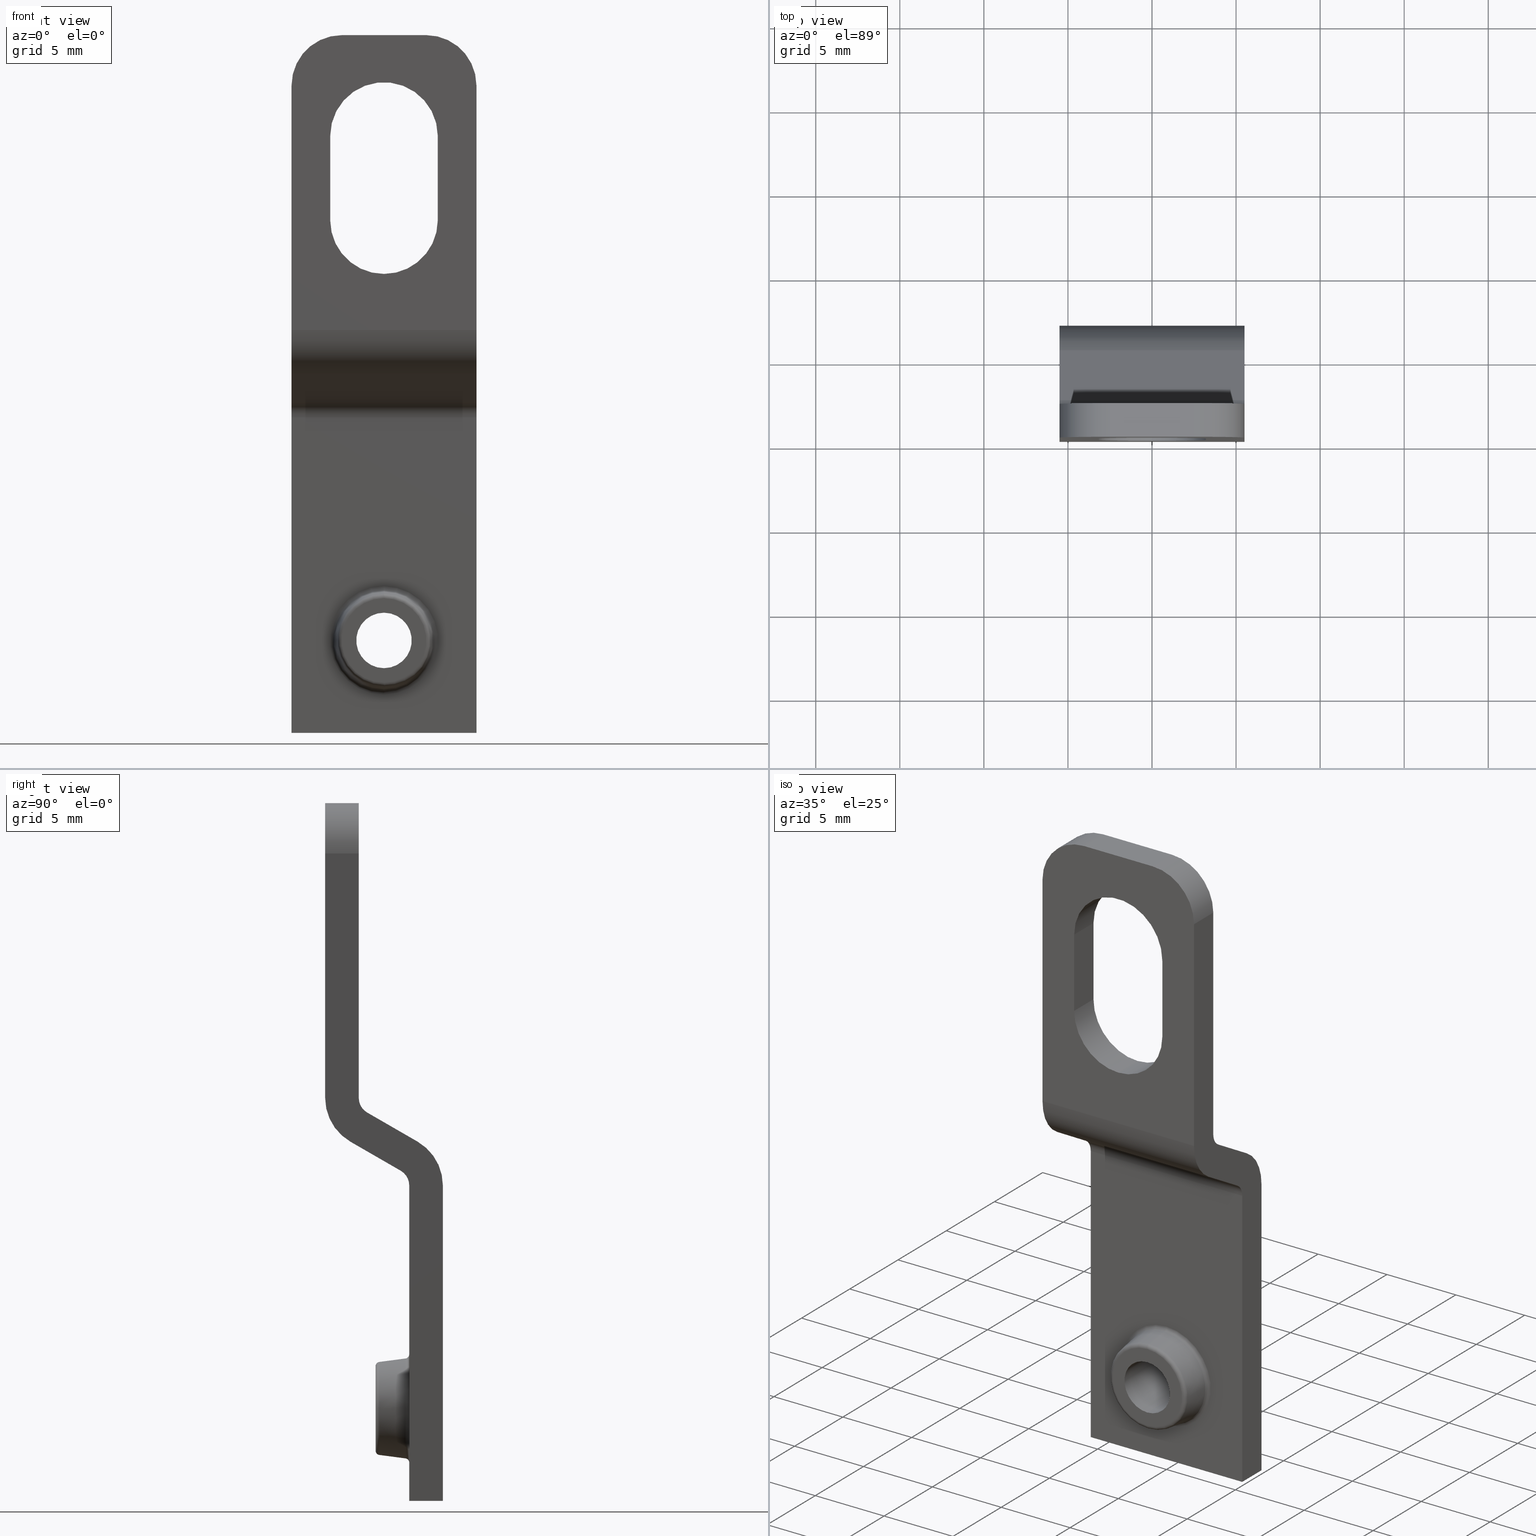
[diagram: canonical four-view strip — front | top / right | iso, engineering-drawing reading convention]
A machine part, canonical four-view strip (front | top / right | iso — engineering-drawing reading convention). The complete STEP part file that produces these views, byte-faithful:
ISO-10303-21;
HEADER;
FILE_DESCRIPTION (( 'STEP AP214' ),
    '1' );
FILE_NAME ('MR28540.STEP',
    '2010-03-01T08:09:42',
    ( 'KennethW' ),
    ( 'FIBOX' ),
    'SwSTEP 2.0',
    'SolidWorks 2009',
    '' );
FILE_SCHEMA (( 'AUTOMOTIVE_DESIGN' ));
ENDSEC;

DATA;
#1 = VECTOR ( 'NONE', #2, 1000.000000000000000 ) ;
#2 = DIRECTION ( 'NONE',  ( -1.000000000000000000, -0.0000000000000000000, -0.0000000000000000000 ) ) ;
#3 = CARTESIAN_POINT ( 'NONE',  ( -2.500000000000000400, 2.000000000000000000, 36.00615242270662000 ) ) ;
#4 = DIRECTION ( 'NONE',  ( 0.0000000000000000000, 0.0000000000000000000, 1.000000000000000000 ) ) ;
#5 = DIRECTION ( 'NONE',  ( -0.0000000000000000000, 1.000000000000000000, 4.621000202388938200E-017 ) ) ;
#6 = CARTESIAN_POINT ( 'NONE',  ( 0.0000000000000000000, 3.217368451944995200, 1.486746026759761000E-016 ) ) ;
#7 = AXIS2_PLACEMENT_3D ( 'NONE', #6, #5, #4 ) ;
#8 = CIRCLE ( 'NONE', #7, 2.765312104420472000 ) ;
#9 = CARTESIAN_POINT ( 'NONE',  ( 0.0000000000000000000, 3.217368451944995200, -2.765312104420472000 ) ) ;
#10 = DIRECTION ( 'NONE',  ( -1.224606353822376500E-016, 0.0000000000000000000, -1.000000000000000000 ) ) ;
#11 = DIRECTION ( 'NONE',  ( 1.000000000000000000, 5.658906208859984600E-033, -1.224606353822377300E-016 ) ) ;
#12 = CARTESIAN_POINT ( 'NONE',  ( 3.082886354199510600E-016, 3.250000000000008000, 2.517450889077019700 ) ) ;
#13 = AXIS2_PLACEMENT_3D ( 'NONE', #12, #11, #10 ) ;
#14 = DIRECTION ( 'NONE',  ( 0.0000000000000000000, -0.0000000000000000000, 1.000000000000000000 ) ) ;
#15 = DIRECTION ( 'NONE',  ( -0.0000000000000000000, 1.000000000000000000, 0.0000000000000000000 ) ) ;
#16 = CIRCLE ( 'NONE', #13, 0.2500000000000002200 ) ;
#17 = CARTESIAN_POINT ( 'NONE',  ( 5.500000000000000000, 0.0000000000000000000, 36.00615242270662000 ) ) ;
#18 = AXIS2_PLACEMENT_3D ( 'NONE', #17, #15, #14 ) ;
#19 = PLANE ( 'NONE',  #18 ) ;
#20 = FACE_BOUND ( 'NONE', #706, .T. ) ;
#21 = FACE_OUTER_BOUND ( 'NONE', #615, .T. ) ;
#22 = DIRECTION ( 'NONE',  ( 0.0000000000000000000, -1.000000000000000000, 0.0000000000000000000 ) ) ;
#23 = VECTOR ( 'NONE', #22, 1000.000000000000000 ) ;
#24 = CARTESIAN_POINT ( 'NONE',  ( -3.200000000000000600, 1.999999999999996700, 30.00000000000000400 ) ) ;
#25 = LINE ( 'NONE', #24, #23 ) ;
#26 = DIRECTION ( 'NONE',  ( 0.0000000000000000000, -1.000000000000000000, 0.0000000000000000000 ) ) ;
#27 = VECTOR ( 'NONE', #26, 1000.000000000000000 ) ;
#28 = CARTESIAN_POINT ( 'NONE',  ( 3.200000000000000600, 1.999999999999996700, 30.00000000000000400 ) ) ;
#29 = LINE ( 'NONE', #28, #27 ) ;
#30 = DIRECTION ( 'NONE',  ( -1.598432043329165000E-017, 0.9914448613738104900, 0.1305261922200519600 ) ) ;
#31 = VECTOR ( 'NONE', #30, 999.9999999999998900 ) ;
#32 = CARTESIAN_POINT ( 'NONE',  ( -3.673819061467132300E-016, 5.000000000000004400, 3.000000000000000900 ) ) ;
#33 = LINE ( 'NONE', #32, #31 ) ;
#34 = CARTESIAN_POINT ( 'NONE',  ( 0.0000000000000000000, 3.250000000000008000, -2.517450889077019700 ) ) ;
#35 = AXIS2_PLACEMENT_3D ( 'NONE', #34, #98, #97 ) ;
#36 = CIRCLE ( 'NONE', #35, 0.2500000000000002200 ) ;
#37 = DIRECTION ( 'NONE',  ( 0.0000000000000000000, 0.0000000000000000000, 1.000000000000000000 ) ) ;
#38 = DIRECTION ( 'NONE',  ( 0.0000000000000000000, 1.000000000000000000, 0.0000000000000000000 ) ) ;
#39 = CARTESIAN_POINT ( 'NONE',  ( 0.0000000000000000000, 1.999999999999996700, 25.00000000000000000 ) ) ;
#40 = AXIS2_PLACEMENT_3D ( 'NONE', #39, #38, #37 ) ;
#41 = DIRECTION ( 'NONE',  ( 0.0000000000000000000, -4.621000202388938200E-017, 1.000000000000000000 ) ) ;
#42 = DIRECTION ( 'NONE',  ( -0.0000000000000000000, 1.000000000000000000, 4.621000202388938200E-017 ) ) ;
#43 = AXIS2_PLACEMENT_3D ( 'NONE', #45, #42, #41 ) ;
#44 = CIRCLE ( 'NONE', #40, 3.200000000000001500 ) ;
#45 = CARTESIAN_POINT ( 'NONE',  ( 0.0000000000000000000, 4.750000000000004400, 2.194975096134747900E-016 ) ) ;
#46 = TOROIDAL_SURFACE ( 'NONE', #43, 3.219244115748189500, 0.2500000000000000000 ) ;
#47 = FACE_OUTER_BOUND ( 'NONE', #669, .T. ) ;
#48 = DIRECTION ( 'NONE',  ( 0.0000000000000000000, 0.0000000000000000000, -1.000000000000000000 ) ) ;
#49 = DIRECTION ( 'NONE',  ( 0.0000000000000000000, -1.000000000000000000, -4.621000202388938200E-017 ) ) ;
#50 = CARTESIAN_POINT ( 'NONE',  ( 0.0000000000000000000, 3.000000000000008000, 1.386300060716685500E-016 ) ) ;
#51 = AXIS2_PLACEMENT_3D ( 'NONE', #50, #49, #48 ) ;
#52 = CIRCLE ( 'NONE', #51, 2.517450889077019700 ) ;
#53 = CARTESIAN_POINT ( 'NONE',  ( 3.234652563787375400E-016, 3.000000000000008000, 2.517450889077019700 ) ) ;
#54 = CARTESIAN_POINT ( 'NONE',  ( 0.0000000000000000000, 3.000000000000008000, -2.517450889077019700 ) ) ;
#55 = DIRECTION ( 'NONE',  ( 0.0000000000000000000, -1.000000000000000000, 0.0000000000000000000 ) ) ;
#56 = VECTOR ( 'NONE', #55, 1000.000000000000000 ) ;
#57 = CARTESIAN_POINT ( 'NONE',  ( 0.0000000000000000000, 7.999999999999996400, -1.650000000000000100 ) ) ;
#58 = LINE ( 'NONE', #57, #56 ) ;
#59 = CARTESIAN_POINT ( 'NONE',  ( 0.0000000000000000000, 3.000000000000008000, -1.650000000000000100 ) ) ;
#60 = DIRECTION ( 'NONE',  ( 0.0000000000000000000, 0.0000000000000000000, -1.000000000000000000 ) ) ;
#61 = DIRECTION ( 'NONE',  ( -0.0000000000000000000, 1.000000000000000000, 4.621000202388938200E-017 ) ) ;
#62 = CARTESIAN_POINT ( 'NONE',  ( 0.0000000000000000000, 3.000000000000008000, 0.0000000000000000000 ) ) ;
#63 = AXIS2_PLACEMENT_3D ( 'NONE', #62, #61, #60 ) ;
#64 = CIRCLE ( 'NONE', #63, 1.650000000000000100 ) ;
#65 = AXIS2_PLACEMENT_3D ( 'NONE', #122, #121, #120 ) ;
#66 = CYLINDRICAL_SURFACE ( 'NONE', #65, 1.650000000000000100 ) ;
#67 = FACE_OUTER_BOUND ( 'NONE', #663, .T. ) ;
#68 = DIRECTION ( 'NONE',  ( 0.0000000000000000000, 0.0000000000000000000, -1.000000000000000000 ) ) ;
#69 = DIRECTION ( 'NONE',  ( -0.0000000000000000000, 1.000000000000000000, -9.242000404777876400E-017 ) ) ;
#70 = CARTESIAN_POINT ( 'NONE',  ( 0.0000000000000000000, 7.000000000000004400, 0.0000000000000000000 ) ) ;
#71 = AXIS2_PLACEMENT_3D ( 'NONE', #70, #69, #68 ) ;
#72 = CIRCLE ( 'NONE', #71, 1.650000000000000100 ) ;
#73 = DIRECTION ( 'NONE',  ( 0.0000000000000000000, 0.0000000000000000000, 1.000000000000000000 ) ) ;
#74 = DIRECTION ( 'NONE',  ( 0.0000000000000000000, -1.000000000000000000, -4.621000202388938200E-017 ) ) ;
#75 = CARTESIAN_POINT ( 'NONE',  ( 0.0000000000000000000, 4.782631548055016800, 2.210054135151395700E-016 ) ) ;
#76 = AXIS2_PLACEMENT_3D ( 'NONE', #75, #74, #73 ) ;
#77 = CIRCLE ( 'NONE', #76, 2.971382900404737200 ) ;
#78 = DIRECTION ( 'NONE',  ( 0.0000000000000000000, 0.0000000000000000000, 1.000000000000000000 ) ) ;
#79 = DIRECTION ( 'NONE',  ( 0.0000000000000000000, 1.000000000000000000, 0.0000000000000000000 ) ) ;
#80 = CARTESIAN_POINT ( 'NONE',  ( 0.0000000000000000000, 0.0000000000000000000, 25.00000000000000000 ) ) ;
#81 = AXIS2_PLACEMENT_3D ( 'NONE', #80, #79, #78 ) ;
#82 = CIRCLE ( 'NONE', #81, 3.200000000000001500 ) ;
#83 = CARTESIAN_POINT ( 'NONE',  ( 0.0000000000000000000, 0.0000000000000000000, 21.80000000000000100 ) ) ;
#84 = CARTESIAN_POINT ( 'NONE',  ( 3.200000000000000600, 0.0000000000000000000, 25.00000000000000000 ) ) ;
#85 = CARTESIAN_POINT ( 'NONE',  ( 0.0000000000000000000, 1.999999999999996700, 21.80000000000000100 ) ) ;
#86 = CARTESIAN_POINT ( 'NONE',  ( 3.200000000000000600, 1.999999999999996700, 25.00000000000000000 ) ) ;
#87 = DIRECTION ( 'NONE',  ( 0.0000000000000000000, -1.000000000000000000, 0.0000000000000000000 ) ) ;
#88 = VECTOR ( 'NONE', #87, 1000.000000000000000 ) ;
#89 = CARTESIAN_POINT ( 'NONE',  ( 0.0000000000000000000, 1.999999999999996700, 21.80000000000000100 ) ) ;
#90 = LINE ( 'NONE', #89, #88 ) ;
#91 = DIRECTION ( 'NONE',  ( 0.0000000000000000000, 0.0000000000000000000, -1.000000000000000000 ) ) ;
#92 = DIRECTION ( 'NONE',  ( -0.0000000000000000000, 1.000000000000000000, 4.621000202388938200E-017 ) ) ;
#93 = AXIS2_PLACEMENT_3D ( 'NONE', #94, #92, #91 ) ;
#94 = CARTESIAN_POINT ( 'NONE',  ( 0.0000000000000000000, 5.000000000000004400, 2.310500101194471200E-016 ) ) ;
#95 = CONICAL_SURFACE ( 'NONE', #93, 3.000000000000000400, 0.1308996938995750100 ) ;
#96 = FACE_OUTER_BOUND ( 'NONE', #648, .T. ) ;
#97 = DIRECTION ( 'NONE',  ( 0.0000000000000000000, 0.0000000000000000000, 1.000000000000000000 ) ) ;
#98 = DIRECTION ( 'NONE',  ( -1.000000000000000000, 0.0000000000000000000, -0.0000000000000000000 ) ) ;
#99 = CIRCLE ( 'NONE', #152, 0.2500000000000002200 ) ;
#100 = CARTESIAN_POINT ( 'NONE',  ( 3.942306798650533900E-016, 5.000000000000004400, -3.219244115748189500 ) ) ;
#101 =( GEOMETRIC_REPRESENTATION_CONTEXT ( 3 ) GLOBAL_UNCERTAINTY_ASSIGNED_CONTEXT ( ( #102 ) ) GLOBAL_UNIT_ASSIGNED_CONTEXT ( ( #105, #104, #103 ) ) REPRESENTATION_CONTEXT ( 'NONE', 'WORKASPACE' ) );
#102 = UNCERTAINTY_MEASURE_WITH_UNIT (LENGTH_MEASURE( 1.000000000000000100E-005 ), #105, 'distance_accuracy_value', 'NONE');
#103 =( NAMED_UNIT ( * ) SI_UNIT ( $, .STERADIAN. ) SOLID_ANGLE_UNIT ( ) );
#104 =( NAMED_UNIT ( * ) PLANE_ANGLE_UNIT ( ) SI_UNIT ( $, .RADIAN. ) );
#105 =( LENGTH_UNIT ( ) NAMED_UNIT ( * ) SI_UNIT ( .MILLI., .METRE. ) );
#106 = MECHANICAL_DESIGN_GEOMETRIC_PRESENTATION_REPRESENTATION (  '', ( #108 ), #101 ) ;
#107 = PRESENTATION_LAYER_ASSIGNMENT (  '', '', ( #108 ) ) ;
#108 = STYLED_ITEM ( 'NONE', ( #109 ), #667 ) ;
#109 = PRESENTATION_STYLE_ASSIGNMENT (( #110 ) ) ;
#110 = SURFACE_STYLE_USAGE ( .BOTH. , #111 ) ;
#111 = SURFACE_SIDE_STYLE ('',( #112 ) ) ;
#112 = SURFACE_STYLE_FILL_AREA ( #113 ) ;
#113 = FILL_AREA_STYLE ('',( #119 ) ) ;
#114 = COLOUR_RGB ( '',0.8235294117647058400, 0.8705882352941176600, 0.9803921568627450600 ) ;
#115 = DIRECTION ( 'NONE',  ( 0.0000000000000000000, -1.000000000000000000, 0.0000000000000000000 ) ) ;
#116 = VECTOR ( 'NONE', #115, 1000.000000000000000 ) ;
#117 = CARTESIAN_POINT ( 'NONE',  ( 3.200000000000000600, 1.999999999999996700, 25.00000000000000000 ) ) ;
#118 = LINE ( 'NONE', #117, #116 ) ;
#119 = FILL_AREA_STYLE_COLOUR ( '', #114 ) ;
#120 = DIRECTION ( 'NONE',  ( 0.0000000000000000000, 0.0000000000000000000, -1.000000000000000000 ) ) ;
#121 = DIRECTION ( 'NONE',  ( 0.0000000000000000000, -1.000000000000000000, 0.0000000000000000000 ) ) ;
#122 = CARTESIAN_POINT ( 'NONE',  ( 0.0000000000000000000, 7.999999999999996400, 0.0000000000000000000 ) ) ;
#123 = CARTESIAN_POINT ( 'NONE',  ( 5.500000000000000000, 0.0000000000000000000, 18.46615242270662100 ) ) ;
#124 = DIRECTION ( 'NONE',  ( -0.0000000000000000000, 9.242000404777875100E-017, 1.000000000000000000 ) ) ;
#125 = VECTOR ( 'NONE', #124, 1000.000000000000000 ) ;
#126 = CARTESIAN_POINT ( 'NONE',  ( -5.500000000000000000, 7.000000000000005300, 13.26999999999999800 ) ) ;
#127 = DIRECTION ( 'NONE',  ( 0.0000000000000000000, 0.0000000000000000000, -1.000000000000000000 ) ) ;
#128 = DIRECTION ( 'NONE',  ( -0.0000000000000000000, 1.000000000000000000, -0.0000000000000000000 ) ) ;
#129 = CARTESIAN_POINT ( 'NONE',  ( 0.0000000000000000000, 0.0000000000000000000, 30.00000000000000400 ) ) ;
#130 = AXIS2_PLACEMENT_3D ( 'NONE', #129, #128, #127 ) ;
#131 = CIRCLE ( 'NONE', #130, 3.200000000000001500 ) ;
#132 = LINE ( 'NONE', #126, #125 ) ;
#133 = CARTESIAN_POINT ( 'NONE',  ( -5.500000000000000000, 0.0000000000000000000, 33.00615242270662000 ) ) ;
#134 = CARTESIAN_POINT ( 'NONE',  ( 3.200000000000000600, 0.0000000000000000000, 30.00000000000000400 ) ) ;
#135 = CARTESIAN_POINT ( 'NONE',  ( -3.199999999999999700, 0.0000000000000000000, 30.00000000000000700 ) ) ;
#136 = DIRECTION ( 'NONE',  ( 0.0000000000000000000, 0.0000000000000000000, 1.000000000000000000 ) ) ;
#137 = DIRECTION ( 'NONE',  ( -0.0000000000000000000, 1.000000000000000000, 4.621000202388938200E-017 ) ) ;
#138 = CARTESIAN_POINT ( 'NONE',  ( 0.0000000000000000000, 5.000000000000004400, 2.310500101194471200E-016 ) ) ;
#139 = AXIS2_PLACEMENT_3D ( 'NONE', #138, #137, #136 ) ;
#140 = CIRCLE ( 'NONE', #139, 3.219244115748189500 ) ;
#141 = DIRECTION ( 'NONE',  ( 0.0000000000000000000, 0.0000000000000000000, -1.000000000000000000 ) ) ;
#142 = DIRECTION ( 'NONE',  ( 0.0000000000000000000, -1.000000000000000000, 0.0000000000000000000 ) ) ;
#143 = CARTESIAN_POINT ( 'NONE',  ( 0.0000000000000000000, 1.999999999999996700, 25.00000000000000000 ) ) ;
#144 = AXIS2_PLACEMENT_3D ( 'NONE', #143, #142, #141 ) ;
#145 = CYLINDRICAL_SURFACE ( 'NONE', #144, 3.200000000000001500 ) ;
#146 = FACE_OUTER_BOUND ( 'NONE', #630, .T. ) ;
#147 = CARTESIAN_POINT ( 'NONE',  ( 0.0000000000000000000, 5.000000000000004400, 3.219244115748189900 ) ) ;
#148 = CARTESIAN_POINT ( 'NONE',  ( 0.0000000000000000000, 4.782631548055016800, -2.971382900404736700 ) ) ;
#149 = DIRECTION ( 'NONE',  ( 1.224606353822376500E-016, 0.0000000000000000000, -1.000000000000000000 ) ) ;
#150 = DIRECTION ( 'NONE',  ( 1.000000000000000000, -5.658906208859984600E-033, 1.224606353822377300E-016 ) ) ;
#151 = CARTESIAN_POINT ( 'NONE',  ( 3.942306798650533900E-016, 4.750000000000004400, -3.219244115748189500 ) ) ;
#152 = AXIS2_PLACEMENT_3D ( 'NONE', #151, #150, #149 ) ;
#153 = DIRECTION ( 'NONE',  ( 0.0000000000000000000, 0.0000000000000000000, 1.000000000000000000 ) ) ;
#154 = DIRECTION ( 'NONE',  ( 0.0000000000000000000, -1.000000000000000000, -0.0000000000000000000 ) ) ;
#155 = CARTESIAN_POINT ( 'NONE',  ( 2.499999999999999600, 0.0000000000000000000, 33.00615242270662000 ) ) ;
#156 = AXIS2_PLACEMENT_3D ( 'NONE', #155, #154, #153 ) ;
#157 = CIRCLE ( 'NONE', #156, 3.000000000000002700 ) ;
#158 = CARTESIAN_POINT ( 'NONE',  ( 0.0000000000000000000, 1.999999999999996700, 30.00000000000000400 ) ) ;
#159 = CARTESIAN_POINT ( 'NONE',  ( 3.200000000000000600, 1.999999999999996700, 30.00000000000000400 ) ) ;
#160 = CARTESIAN_POINT ( 'NONE',  ( -3.200000000000000600, 1.999999999999996700, 30.00000000000000400 ) ) ;
#161 = DIRECTION ( 'NONE',  ( 0.0000000000000000000, 0.0000000000000000000, 1.000000000000000000 ) ) ;
#162 = DIRECTION ( 'NONE',  ( 0.0000000000000000000, 1.000000000000000000, 0.0000000000000000000 ) ) ;
#163 = CARTESIAN_POINT ( 'NONE',  ( 0.0000000000000000000, 0.0000000000000000000, 25.00000000000000000 ) ) ;
#164 = AXIS2_PLACEMENT_3D ( 'NONE', #163, #162, #161 ) ;
#165 = CIRCLE ( 'NONE', #164, 3.200000000000001500 ) ;
#166 = CARTESIAN_POINT ( 'NONE',  ( 2.499999999999999600, 0.0000000000000000000, 36.00615242270662000 ) ) ;
#167 = DIRECTION ( 'NONE',  ( -1.000000000000000000, -0.0000000000000000000, -0.0000000000000000000 ) ) ;
#168 = VECTOR ( 'NONE', #167, 1000.000000000000000 ) ;
#169 = CARTESIAN_POINT ( 'NONE',  ( 5.500000000000000000, 0.0000000000000000000, 36.00615242270662000 ) ) ;
#170 = LINE ( 'NONE', #169, #168 ) ;
#171 = CARTESIAN_POINT ( 'NONE',  ( -5.500000000000000000, 7.000000000000005300, 13.26999999999999800 ) ) ;
#172 = CARTESIAN_POINT ( 'NONE',  ( -5.500000000000000000, 7.000000000000003600, -5.500000000000001800 ) ) ;
#173 = CARTESIAN_POINT ( 'NONE',  ( 5.500000000000000000, 7.000000000000005300, 13.26999999999999800 ) ) ;
#174 = DIRECTION ( 'NONE',  ( -1.000000000000000000, -0.0000000000000000000, -0.0000000000000000000 ) ) ;
#175 = VECTOR ( 'NONE', #174, 1000.000000000000000 ) ;
#176 = CARTESIAN_POINT ( 'NONE',  ( 5.500000000000000000, 7.000000000000005300, 13.26999999999999800 ) ) ;
#177 = LINE ( 'NONE', #176, #175 ) ;
#178 = DIRECTION ( 'NONE',  ( 0.0000000000000000000, 0.0000000000000000000, -1.000000000000000000 ) ) ;
#179 = VECTOR ( 'NONE', #178, 1000.000000000000000 ) ;
#180 = CARTESIAN_POINT ( 'NONE',  ( 3.200000000000000600, 0.0000000000000000000, 30.00000000000000400 ) ) ;
#181 = LINE ( 'NONE', #180, #179 ) ;
#182 = DIRECTION ( 'NONE',  ( 0.0000000000000000000, 0.0000000000000000000, -1.000000000000000000 ) ) ;
#183 = DIRECTION ( 'NONE',  ( -0.0000000000000000000, 1.000000000000000000, -0.0000000000000000000 ) ) ;
#184 = CARTESIAN_POINT ( 'NONE',  ( -2.500000000000000400, 2.000000000000000000, 33.00615242270662000 ) ) ;
#185 = AXIS2_PLACEMENT_3D ( 'NONE', #184, #183, #182 ) ;
#186 = CIRCLE ( 'NONE', #185, 2.999999999999999100 ) ;
#187 = DIRECTION ( 'NONE',  ( -1.000000000000000000, -0.0000000000000000000, -0.0000000000000000000 ) ) ;
#188 = VECTOR ( 'NONE', #187, 1000.000000000000000 ) ;
#189 = CARTESIAN_POINT ( 'NONE',  ( 5.500000000000000000, 0.0000000000000000000, 18.46615242270662100 ) ) ;
#190 = LINE ( 'NONE', #189, #188 ) ;
#191 = CARTESIAN_POINT ( 'NONE',  ( -3.200000000000000600, 0.0000000000000000000, 25.00000000000000000 ) ) ;
#192 = DIRECTION ( 'NONE',  ( -0.0000000000000000000, -0.0000000000000000000, 1.000000000000000000 ) ) ;
#193 = VECTOR ( 'NONE', #192, 1000.000000000000000 ) ;
#194 = CARTESIAN_POINT ( 'NONE',  ( -3.200000000000000600, 0.0000000000000000000, 30.00000000000000400 ) ) ;
#195 = LINE ( 'NONE', #194, #193 ) ;
#196 = DIRECTION ( 'NONE',  ( 0.0000000000000000000, -0.0000000000000000000, -1.000000000000000000 ) ) ;
#197 = DIRECTION ( 'NONE',  ( 0.0000000000000000000, -1.000000000000000000, 0.0000000000000000000 ) ) ;
#198 = CARTESIAN_POINT ( 'NONE',  ( 5.500000000000000000, 2.000000000000000000, 36.00615242270662000 ) ) ;
#199 = AXIS2_PLACEMENT_3D ( 'NONE', #198, #197, #196 ) ;
#200 = PLANE ( 'NONE',  #199 ) ;
#201 = FACE_BOUND ( 'NONE', #713, .T. ) ;
#202 = FACE_OUTER_BOUND ( 'NONE', #724, .T. ) ;
#203 = CARTESIAN_POINT ( 'NONE',  ( -2.500000000000000400, 0.0000000000000000000, 36.00615242270662000 ) ) ;
#204 = DIRECTION ( 'NONE',  ( -0.0000000000000000000, -0.0000000000000000000, 1.000000000000000000 ) ) ;
#205 = VECTOR ( 'NONE', #204, 1000.000000000000000 ) ;
#206 = CARTESIAN_POINT ( 'NONE',  ( -3.200000000000000600, 1.999999999999996700, 30.00000000000000400 ) ) ;
#207 = LINE ( 'NONE', #206, #205 ) ;
#208 = CARTESIAN_POINT ( 'NONE',  ( -3.199999999999999700, 2.000000000000000000, 25.00000000000000000 ) ) ;
#209 = DIRECTION ( 'NONE',  ( 0.0000000000000000000, -1.000000000000000000, 0.0000000000000000000 ) ) ;
#210 = VECTOR ( 'NONE', #209, 1000.000000000000000 ) ;
#211 = CARTESIAN_POINT ( 'NONE',  ( 2.020600483806922700E-016, 7.999999999999996400, 1.650000000000000100 ) ) ;
#212 = LINE ( 'NONE', #211, #210 ) ;
#213 = DIRECTION ( 'NONE',  ( 0.0000000000000000000, 0.0000000000000000000, -1.000000000000000000 ) ) ;
#214 = DIRECTION ( 'NONE',  ( -0.0000000000000000000, 1.000000000000000000, -0.0000000000000000000 ) ) ;
#215 = AXIS2_PLACEMENT_3D ( 'NONE', #158, #214, #213 ) ;
#216 = CIRCLE ( 'NONE', #215, 3.200000000000001500 ) ;
#217 = CARTESIAN_POINT ( 'NONE',  ( 5.500000000000000000, 7.000000000000003600, -5.500000000000001800 ) ) ;
#218 = CARTESIAN_POINT ( 'NONE',  ( 2.499999999999999600, 2.000000000000000000, 36.00615242270662000 ) ) ;
#219 = CARTESIAN_POINT ( 'NONE',  ( -5.500000000000000000, 2.000000000000000000, 33.00615242270662000 ) ) ;
#220 = DIRECTION ( 'NONE',  ( -0.0000000000000000000, 9.242000404777875100E-017, 1.000000000000000000 ) ) ;
#221 = VECTOR ( 'NONE', #220, 1000.000000000000000 ) ;
#222 = CARTESIAN_POINT ( 'NONE',  ( 5.500000000000000000, 7.000000000000005300, 13.26999999999999800 ) ) ;
#223 = LINE ( 'NONE', #222, #221 ) ;
#224 = DIRECTION ( 'NONE',  ( 0.0000000000000000000, 0.0000000000000000000, -1.000000000000000000 ) ) ;
#225 = DIRECTION ( 'NONE',  ( -1.000000000000000000, -0.0000000000000000000, -0.0000000000000000000 ) ) ;
#226 = CARTESIAN_POINT ( 'NONE',  ( 5.500000000000000000, 3.000000000000003600, 18.46615242270662100 ) ) ;
#227 = AXIS2_PLACEMENT_3D ( 'NONE', #226, #225, #224 ) ;
#228 = CIRCLE ( 'NONE', #227, 1.000000000000000900 ) ;
#229 = DIRECTION ( 'NONE',  ( 0.0000000000000000000, 0.0000000000000000000, -1.000000000000000000 ) ) ;
#230 = DIRECTION ( 'NONE',  ( 0.0000000000000000000, -1.000000000000000000, -4.621000202388938200E-017 ) ) ;
#231 = CARTESIAN_POINT ( 'NONE',  ( 0.0000000000000000000, 3.000000000000008000, 1.386300060716685500E-016 ) ) ;
#232 = AXIS2_PLACEMENT_3D ( 'NONE', #231, #230, #229 ) ;
#233 = DIRECTION ( 'NONE',  ( 0.0000000000000000000, 4.621000202388938200E-017, -1.000000000000000000 ) ) ;
#234 = DIRECTION ( 'NONE',  ( 0.0000000000000000000, -1.000000000000000000, -4.621000202388938200E-017 ) ) ;
#235 = CARTESIAN_POINT ( 'NONE',  ( 0.0000000000000000000, 3.000000000000008000, 1.386300060716685500E-016 ) ) ;
#236 = CIRCLE ( 'NONE', #232, 2.517450889077019700 ) ;
#237 = AXIS2_PLACEMENT_3D ( 'NONE', #235, #234, #233 ) ;
#238 = PLANE ( 'NONE',  #237 ) ;
#239 = FACE_BOUND ( 'NONE', #738, .T. ) ;
#240 = FACE_OUTER_BOUND ( 'NONE', #742, .T. ) ;
#241 = DIRECTION ( 'NONE',  ( 0.0000000000000000000, 0.0000000000000000000, -1.000000000000000000 ) ) ;
#242 = DIRECTION ( 'NONE',  ( -0.0000000000000000000, 1.000000000000000000, -9.242000404777876400E-017 ) ) ;
#243 = CARTESIAN_POINT ( 'NONE',  ( 0.0000000000000000000, 7.000000000000004400, 0.0000000000000000000 ) ) ;
#244 = AXIS2_PLACEMENT_3D ( 'NONE', #243, #242, #241 ) ;
#245 = CIRCLE ( 'NONE', #244, 1.650000000000000100 ) ;
#246 = DIRECTION ( 'NONE',  ( -1.000000000000000000, -0.0000000000000000000, -0.0000000000000000000 ) ) ;
#247 = VECTOR ( 'NONE', #246, 1000.000000000000000 ) ;
#248 = CARTESIAN_POINT ( 'NONE',  ( 5.500000000000000000, 2.000000000000000000, 36.00615242270662000 ) ) ;
#249 = LINE ( 'NONE', #248, #247 ) ;
#250 = CARTESIAN_POINT ( 'NONE',  ( 5.500000000000000000, 0.0000000000000000000, 36.00615242270662000 ) ) ;
#251 = LINE ( 'NONE', #250, #310 ) ;
#252 = CARTESIAN_POINT ( 'NONE',  ( 5.500000000000000000, 0.0000000000000000000, 33.00615242270662000 ) ) ;
#253 = CARTESIAN_POINT ( 'NONE',  ( -5.500000000000000000, 0.0000000000000000000, 18.46615242270662100 ) ) ;
#254 = CARTESIAN_POINT ( 'NONE',  ( 5.500000000000000000, 2.000000000000004000, 18.46615242270662100 ) ) ;
#255 = DIRECTION ( 'NONE',  ( 0.0000000000000000000, 0.0000000000000000000, 1.000000000000000000 ) ) ;
#256 = DIRECTION ( 'NONE',  ( 0.0000000000000000000, 1.000000000000000000, 0.0000000000000000000 ) ) ;
#257 = CARTESIAN_POINT ( 'NONE',  ( 0.0000000000000000000, 1.999999999999996700, 25.00000000000000000 ) ) ;
#258 = AXIS2_PLACEMENT_3D ( 'NONE', #257, #256, #255 ) ;
#259 = CIRCLE ( 'NONE', #258, 3.200000000000001500 ) ;
#260 = DIRECTION ( 'NONE',  ( 0.0000000000000000000, 0.0000000000000000000, -1.000000000000000000 ) ) ;
#261 = VECTOR ( 'NONE', #260, 1000.000000000000000 ) ;
#262 = CARTESIAN_POINT ( 'NONE',  ( 3.200000000000000600, 1.999999999999996700, 30.00000000000000400 ) ) ;
#263 = LINE ( 'NONE', #262, #261 ) ;
#264 = DIRECTION ( 'NONE',  ( 0.0000000000000000000, 0.0000000000000000000, -1.000000000000000000 ) ) ;
#265 = DIRECTION ( 'NONE',  ( -0.0000000000000000000, 1.000000000000000000, -0.0000000000000000000 ) ) ;
#266 = CARTESIAN_POINT ( 'NONE',  ( 2.499999999999999600, 2.000000000000000000, 33.00615242270662000 ) ) ;
#267 = AXIS2_PLACEMENT_3D ( 'NONE', #266, #265, #264 ) ;
#268 = CIRCLE ( 'NONE', #267, 2.999999999999999100 ) ;
#269 = DIRECTION ( 'NONE',  ( -0.0000000000000000000, -0.0000000000000000000, 1.000000000000000000 ) ) ;
#270 = VECTOR ( 'NONE', #269, 1000.000000000000000 ) ;
#271 = CARTESIAN_POINT ( 'NONE',  ( 5.500000000000000000, 2.000000000000000000, 36.00615242270662000 ) ) ;
#272 = LINE ( 'NONE', #271, #270 ) ;
#273 = CARTESIAN_POINT ( 'NONE',  ( 5.500000000000000000, 2.000000000000000000, 33.00615242270662000 ) ) ;
#274 = DIRECTION ( 'NONE',  ( -1.000000000000000000, -0.0000000000000000000, -0.0000000000000000000 ) ) ;
#275 = VECTOR ( 'NONE', #274, 1000.000000000000000 ) ;
#276 = CARTESIAN_POINT ( 'NONE',  ( 5.500000000000000000, 7.000000000000003600, -5.500000000000001800 ) ) ;
#277 = LINE ( 'NONE', #276, #275 ) ;
#278 = CARTESIAN_POINT ( 'NONE',  ( -5.500000000000000000, 2.000000000000004000, 18.46615242270662100 ) ) ;
#279 = DIRECTION ( 'NONE',  ( 0.0000000000000000000, -1.000000000000000000, 0.0000000000000000000 ) ) ;
#280 = VECTOR ( 'NONE', #279, 1000.000000000000000 ) ;
#281 = CARTESIAN_POINT ( 'NONE',  ( -2.500000000000000400, 2.000000000000000000, 36.00615242270662000 ) ) ;
#282 = LINE ( 'NONE', #281, #280 ) ;
#283 = DIRECTION ( 'NONE',  ( 0.0000000000000000000, 0.0000000000000000000, -1.000000000000000000 ) ) ;
#284 = DIRECTION ( 'NONE',  ( 1.000000000000000000, 0.0000000000000000000, 0.0000000000000000000 ) ) ;
#285 = CARTESIAN_POINT ( 'NONE',  ( -5.500000000000000000, 3.000000000000003600, 18.46615242270662100 ) ) ;
#286 = AXIS2_PLACEMENT_3D ( 'NONE', #285, #284, #283 ) ;
#287 = CIRCLE ( 'NONE', #286, 2.999999999999999100 ) ;
#288 = CARTESIAN_POINT ( 'NONE',  ( -5.500000000000000000, 1.500000000000009800, 15.86807621135330100 ) ) ;
#289 = DIRECTION ( 'NONE',  ( 0.0000000000000000000, 0.0000000000000000000, 1.000000000000000000 ) ) ;
#290 = DIRECTION ( 'NONE',  ( 0.0000000000000000000, -1.000000000000000000, -0.0000000000000000000 ) ) ;
#291 = CARTESIAN_POINT ( 'NONE',  ( -2.500000000000000400, 0.0000000000000000000, 33.00615242270662000 ) ) ;
#292 = AXIS2_PLACEMENT_3D ( 'NONE', #291, #290, #289 ) ;
#293 = CIRCLE ( 'NONE', #292, 3.000000000000002700 ) ;
#294 = DIRECTION ( 'NONE',  ( 0.0000000000000000000, 0.0000000000000000000, -1.000000000000000000 ) ) ;
#295 = VECTOR ( 'NONE', #294, 1000.000000000000000 ) ;
#296 = CARTESIAN_POINT ( 'NONE',  ( -5.500000000000000000, 0.0000000000000000000, 36.00615242270662000 ) ) ;
#297 = LINE ( 'NONE', #296, #295 ) ;
#298 = DIRECTION ( 'NONE',  ( -0.0000000000000000000, -0.0000000000000000000, 1.000000000000000000 ) ) ;
#299 = VECTOR ( 'NONE', #298, 1000.000000000000000 ) ;
#300 = CARTESIAN_POINT ( 'NONE',  ( -5.500000000000000000, 2.000000000000000000, 36.00615242270662000 ) ) ;
#301 = LINE ( 'NONE', #300, #299 ) ;
#302 = DIRECTION ( 'NONE',  ( 0.0000000000000000000, -9.242000404777876400E-017, -1.000000000000000000 ) ) ;
#303 = DIRECTION ( 'NONE',  ( 0.0000000000000000000, -1.000000000000000000, 9.242000404777876400E-017 ) ) ;
#304 = CARTESIAN_POINT ( 'NONE',  ( 5.500000000000000000, 7.000000000000005300, 13.26999999999999800 ) ) ;
#305 = AXIS2_PLACEMENT_3D ( 'NONE', #304, #303, #302 ) ;
#306 = PLANE ( 'NONE',  #305 ) ;
#307 = FACE_BOUND ( 'NONE', #727, .T. ) ;
#308 = FACE_OUTER_BOUND ( 'NONE', #761, .T. ) ;
#309 = DIRECTION ( 'NONE',  ( 0.0000000000000000000, 0.0000000000000000000, -1.000000000000000000 ) ) ;
#310 = VECTOR ( 'NONE', #309, 1000.000000000000000 ) ;
#311 = DIRECTION ( 'NONE',  ( -0.0000000000000000000, 1.000000000000000000, 4.621000202388938200E-017 ) ) ;
#312 = CARTESIAN_POINT ( 'NONE',  ( 0.0000000000000000000, 5.000000000000004400, 2.310500101194471200E-016 ) ) ;
#313 = AXIS2_PLACEMENT_3D ( 'NONE', #312, #311, #373 ) ;
#314 = CIRCLE ( 'NONE', #313, 3.219244115748189500 ) ;
#315 = FACE_OUTER_BOUND ( 'NONE', #775, .T. ) ;
#316 = DIRECTION ( 'NONE',  ( 0.0000000000000000000, 0.0000000000000000000, -1.000000000000000000 ) ) ;
#317 = DIRECTION ( 'NONE',  ( -0.0000000000000000000, 1.000000000000000000, 4.621000202388938200E-017 ) ) ;
#318 = CARTESIAN_POINT ( 'NONE',  ( 0.0000000000000000000, 3.000000000000008000, 0.0000000000000000000 ) ) ;
#319 = AXIS2_PLACEMENT_3D ( 'NONE', #318, #317, #316 ) ;
#320 = DIRECTION ( 'NONE',  ( 0.0000000000000000000, -4.621000202388938200E-017, 1.000000000000000000 ) ) ;
#321 = DIRECTION ( 'NONE',  ( -0.0000000000000000000, 1.000000000000000000, 4.621000202388938200E-017 ) ) ;
#322 = CARTESIAN_POINT ( 'NONE',  ( 5.500000000000000000, 5.000000000000003600, 13.26999999999999800 ) ) ;
#323 = AXIS2_PLACEMENT_3D ( 'NONE', #322, #321, #320 ) ;
#324 = CIRCLE ( 'NONE', #319, 1.650000000000000100 ) ;
#325 = PLANE ( 'NONE',  #323 ) ;
#326 = DIRECTION ( 'NONE',  ( 0.0000000000000000000, -0.8660254037844399300, 0.4999999999999977200 ) ) ;
#327 = DIRECTION ( 'NONE',  ( -0.0000000000000000000, 0.4999999999999977200, 0.8660254037844399300 ) ) ;
#328 = CARTESIAN_POINT ( 'NONE',  ( 5.500000000000000000, 1.500000000000014700, 15.86807621135330500 ) ) ;
#329 = AXIS2_PLACEMENT_3D ( 'NONE', #328, #327, #326 ) ;
#330 = FACE_OUTER_BOUND ( 'NONE', #793, .T. ) ;
#331 = FACE_BOUND ( 'NONE', #788, .T. ) ;
#332 = PLANE ( 'NONE',  #329 ) ;
#333 = FACE_OUTER_BOUND ( 'NONE', #785, .T. ) ;
#334 = CARTESIAN_POINT ( 'NONE',  ( 5.500000000000000000, 1.500000000000009800, 15.86807621135330100 ) ) ;
#335 = DIRECTION ( 'NONE',  ( -1.000000000000000000, -0.0000000000000000000, -0.0000000000000000000 ) ) ;
#336 = VECTOR ( 'NONE', #335, 1000.000000000000000 ) ;
#337 = CARTESIAN_POINT ( 'NONE',  ( 5.500000000000000000, 1.500000000000009800, 15.86807621135330100 ) ) ;
#338 = LINE ( 'NONE', #337, #336 ) ;
#339 = DIRECTION ( 'NONE',  ( 0.0000000000000000000, 0.0000000000000000000, -1.000000000000000000 ) ) ;
#340 = DIRECTION ( 'NONE',  ( 1.000000000000000000, 0.0000000000000000000, 0.0000000000000000000 ) ) ;
#341 = CARTESIAN_POINT ( 'NONE',  ( 5.500000000000000000, 3.000000000000003600, 18.46615242270662100 ) ) ;
#342 = AXIS2_PLACEMENT_3D ( 'NONE', #341, #340, #339 ) ;
#343 = CIRCLE ( 'NONE', #342, 2.999999999999999100 ) ;
#344 = LINE ( 'NONE', #402, #401 ) ;
#345 = DIRECTION ( 'NONE',  ( 0.0000000000000000000, 0.0000000000000000000, 1.000000000000000000 ) ) ;
#346 = DIRECTION ( 'NONE',  ( -1.000000000000000000, -0.0000000000000000000, -0.0000000000000000000 ) ) ;
#347 = AXIS2_PLACEMENT_3D ( 'NONE', #348, #346, #345 ) ;
#348 = CARTESIAN_POINT ( 'NONE',  ( 5.500000000000000000, 3.000000000000003600, 18.46615242270662100 ) ) ;
#349 = CYLINDRICAL_SURFACE ( 'NONE', #347, 1.000000000000000900 ) ;
#350 = FACE_OUTER_BOUND ( 'NONE', #780, .T. ) ;
#351 = DIRECTION ( 'NONE',  ( -1.000000000000000000, -0.0000000000000000000, -0.0000000000000000000 ) ) ;
#352 = VECTOR ( 'NONE', #351, 1000.000000000000000 ) ;
#353 = CARTESIAN_POINT ( 'NONE',  ( 5.500000000000000000, 2.500000000000008000, 17.60012701892218300 ) ) ;
#354 = LINE ( 'NONE', #353, #352 ) ;
#355 = CARTESIAN_POINT ( 'NONE',  ( 5.500000000000000000, 5.000000000000007100, 13.26999999999999800 ) ) ;
#356 = CARTESIAN_POINT ( 'NONE',  ( 5.500000000000000000, 2.500000000000008000, 17.60012701892218300 ) ) ;
#357 = CARTESIAN_POINT ( 'NONE',  ( -5.500000000000000000, 5.000000000000007100, 13.26999999999999800 ) ) ;
#358 = DIRECTION ( 'NONE',  ( 0.0000000000000000000, 4.621000202388937600E-017, -1.000000000000000000 ) ) ;
#359 = VECTOR ( 'NONE', #358, 1000.000000000000000 ) ;
#360 = CARTESIAN_POINT ( 'NONE',  ( -5.500000000000000000, 5.000000000000003600, 13.26999999999999800 ) ) ;
#361 = LINE ( 'NONE', #360, #359 ) ;
#362 = DIRECTION ( 'NONE',  ( -1.000000000000000000, -0.0000000000000000000, -0.0000000000000000000 ) ) ;
#363 = VECTOR ( 'NONE', #362, 1000.000000000000000 ) ;
#364 = CARTESIAN_POINT ( 'NONE',  ( 5.500000000000000000, 5.000000000000004400, -5.500000000000001800 ) ) ;
#365 = LINE ( 'NONE', #364, #363 ) ;
#366 = CARTESIAN_POINT ( 'NONE',  ( -5.500000000000000000, 5.000000000000004400, -5.500000000000001800 ) ) ;
#367 = DIRECTION ( 'NONE',  ( 0.0000000000000000000, 0.0000000000000000000, 1.000000000000000000 ) ) ;
#368 = DIRECTION ( 'NONE',  ( -1.000000000000000000, -0.0000000000000000000, -0.0000000000000000000 ) ) ;
#369 = CARTESIAN_POINT ( 'NONE',  ( 5.500000000000000000, 3.000000000000003600, 18.46615242270662100 ) ) ;
#370 = AXIS2_PLACEMENT_3D ( 'NONE', #369, #368, #367 ) ;
#371 = CARTESIAN_POINT ( 'NONE',  ( 5.500000000000000000, 5.000000000000004400, -5.500000000000001800 ) ) ;
#372 = CYLINDRICAL_SURFACE ( 'NONE', #370, 2.999999999999999100 ) ;
#373 = DIRECTION ( 'NONE',  ( 0.0000000000000000000, 0.0000000000000000000, 1.000000000000000000 ) ) ;
#374 = DIRECTION ( 'NONE',  ( -1.000000000000000000, -0.0000000000000000000, -0.0000000000000000000 ) ) ;
#375 = VECTOR ( 'NONE', #374, 1000.000000000000000 ) ;
#376 = CARTESIAN_POINT ( 'NONE',  ( 5.500000000000000000, 4.500000000000004400, 14.13602540378444400 ) ) ;
#377 = LINE ( 'NONE', #376, #375 ) ;
#378 = CARTESIAN_POINT ( 'NONE',  ( -5.500000000000000000, 4.500000000000004400, 14.13602540378444400 ) ) ;
#379 = DIRECTION ( 'NONE',  ( 0.0000000000000000000, 0.0000000000000000000, 1.000000000000000000 ) ) ;
#380 = DIRECTION ( 'NONE',  ( -1.000000000000000000, 0.0000000000000000000, 0.0000000000000000000 ) ) ;
#381 = CARTESIAN_POINT ( 'NONE',  ( -5.500000000000000000, 4.000000000000003600, 13.26999999999999800 ) ) ;
#382 = AXIS2_PLACEMENT_3D ( 'NONE', #381, #380, #379 ) ;
#383 = CIRCLE ( 'NONE', #382, 1.000000000000004400 ) ;
#384 = DIRECTION ( 'NONE',  ( 0.0000000000000000000, 0.8660254037844399300, -0.4999999999999977200 ) ) ;
#385 = VECTOR ( 'NONE', #384, 1000.000000000000100 ) ;
#386 = CARTESIAN_POINT ( 'NONE',  ( -5.500000000000000000, 1.500000000000014700, 15.86807621135330500 ) ) ;
#387 = LINE ( 'NONE', #386, #385 ) ;
#388 = DIRECTION ( 'NONE',  ( 0.0000000000000000000, 0.0000000000000000000, 1.000000000000000000 ) ) ;
#389 = DIRECTION ( 'NONE',  ( -1.000000000000000000, -0.0000000000000000000, -0.0000000000000000000 ) ) ;
#390 = AXIS2_PLACEMENT_3D ( 'NONE', #392, #389, #388 ) ;
#391 = CARTESIAN_POINT ( 'NONE',  ( -5.500000000000000000, 5.500000000000000900, 15.86807621135331900 ) ) ;
#392 = CARTESIAN_POINT ( 'NONE',  ( 5.500000000000000000, 4.000000000000003600, 13.26999999999999800 ) ) ;
#393 = CYLINDRICAL_SURFACE ( 'NONE', #390, 1.000000000000004400 ) ;
#394 = FACE_OUTER_BOUND ( 'NONE', #815, .T. ) ;
#395 = DIRECTION ( 'NONE',  ( 0.0000000000000000000, 0.0000000000000000000, -1.000000000000000000 ) ) ;
#396 = DIRECTION ( 'NONE',  ( -1.000000000000000000, -0.0000000000000000000, -0.0000000000000000000 ) ) ;
#397 = CARTESIAN_POINT ( 'NONE',  ( -5.500000000000000000, 3.000000000000003600, 18.46615242270662100 ) ) ;
#398 = AXIS2_PLACEMENT_3D ( 'NONE', #397, #396, #395 ) ;
#399 = CIRCLE ( 'NONE', #398, 1.000000000000000900 ) ;
#400 = DIRECTION ( 'NONE',  ( -0.0000000000000000000, -0.8660254037844400400, 0.4999999999999974500 ) ) ;
#401 = VECTOR ( 'NONE', #400, 1000.000000000000100 ) ;
#402 = CARTESIAN_POINT ( 'NONE',  ( 5.500000000000000000, 2.500000000000008000, 17.60012701892218300 ) ) ;
#403 = LINE ( 'NONE', #467, #466 ) ;
#404 = CARTESIAN_POINT ( 'NONE',  ( -5.500000000000000000, 2.500000000000008000, 17.60012701892218300 ) ) ;
#405 = DIRECTION ( 'NONE',  ( -0.0000000000000000000, -0.8660254037844400400, 0.4999999999999974500 ) ) ;
#406 = VECTOR ( 'NONE', #405, 1000.000000000000100 ) ;
#407 = CARTESIAN_POINT ( 'NONE',  ( -5.500000000000000000, 2.500000000000008000, 17.60012701892218300 ) ) ;
#408 = DIRECTION ( 'NONE',  ( 0.0000000000000000000, 0.0000000000000000000, -1.000000000000000000 ) ) ;
#409 = DIRECTION ( 'NONE',  ( 1.000000000000000000, 0.0000000000000000000, 0.0000000000000000000 ) ) ;
#410 = LINE ( 'NONE', #407, #406 ) ;
#411 = CARTESIAN_POINT ( 'NONE',  ( 5.500000000000000000, 3.000000000000003600, 18.46615242270662100 ) ) ;
#412 = AXIS2_PLACEMENT_3D ( 'NONE', #411, #409, #408 ) ;
#413 = FACE_OUTER_BOUND ( 'NONE', #770, .T. ) ;
#414 = DIRECTION ( 'NONE',  ( 0.0000000000000000000, 0.8660254037844401500, -0.4999999999999973900 ) ) ;
#415 = DIRECTION ( 'NONE',  ( 0.0000000000000000000, -0.4999999999999973900, -0.8660254037844401500 ) ) ;
#416 = CARTESIAN_POINT ( 'NONE',  ( 5.500000000000000000, 2.500000000000008000, 17.60012701892218300 ) ) ;
#417 = AXIS2_PLACEMENT_3D ( 'NONE', #416, #415, #414 ) ;
#418 = PLANE ( 'NONE',  #417 ) ;
#419 = PLANE ( 'NONE',  #412 ) ;
#420 = FACE_OUTER_BOUND ( 'NONE', #835, .T. ) ;
#421 = DIRECTION ( 'NONE',  ( -1.000000000000000000, -0.0000000000000000000, -0.0000000000000000000 ) ) ;
#422 = VECTOR ( 'NONE', #421, 1000.000000000000000 ) ;
#423 = CARTESIAN_POINT ( 'NONE',  ( 5.500000000000000000, 5.500000000000000900, 15.86807621135331900 ) ) ;
#424 = DIRECTION ( 'NONE',  ( 0.0000000000000000000, 0.0000000000000000000, 1.000000000000000000 ) ) ;
#425 = DIRECTION ( 'NONE',  ( 1.000000000000000000, -0.0000000000000000000, -0.0000000000000000000 ) ) ;
#426 = CARTESIAN_POINT ( 'NONE',  ( -5.500000000000000000, 4.000000000000003600, 13.26999999999999800 ) ) ;
#427 = AXIS2_PLACEMENT_3D ( 'NONE', #426, #425, #424 ) ;
#428 = CIRCLE ( 'NONE', #427, 3.000000000000002700 ) ;
#429 = LINE ( 'NONE', #423, #422 ) ;
#430 = CARTESIAN_POINT ( 'NONE',  ( 5.500000000000000000, 5.500000000000000900, 15.86807621135331900 ) ) ;
#431 = DIRECTION ( 'NONE',  ( 0.0000000000000000000, 0.0000000000000000000, 1.000000000000000000 ) ) ;
#432 = DIRECTION ( 'NONE',  ( 1.000000000000000000, -0.0000000000000000000, -0.0000000000000000000 ) ) ;
#433 = CARTESIAN_POINT ( 'NONE',  ( 5.500000000000000000, 4.000000000000003600, 13.26999999999999800 ) ) ;
#434 = AXIS2_PLACEMENT_3D ( 'NONE', #433, #432, #431 ) ;
#435 = CIRCLE ( 'NONE', #434, 3.000000000000002700 ) ;
#436 = PLANE ( 'NONE',  #498 ) ;
#437 = FACE_OUTER_BOUND ( 'NONE', #935, .T. ) ;
#438 = DIRECTION ( 'NONE',  ( -0.0000000000000000000, 1.000000000000000000, -0.0000000000000000000 ) ) ;
#439 = VECTOR ( 'NONE', #438, 1000.000000000000000 ) ;
#440 = CARTESIAN_POINT ( 'NONE',  ( -5.500000000000000000, 3.000000000000003600, 33.00615242270662000 ) ) ;
#441 = DIRECTION ( 'NONE',  ( -1.000000000000000000, 0.0000000000000000000, -0.0000000000000000000 ) ) ;
#442 = DIRECTION ( 'NONE',  ( 0.0000000000000000000, 0.0000000000000000000, -1.000000000000000000 ) ) ;
#443 = CARTESIAN_POINT ( 'NONE',  ( 5.500000000000000000, 2.000000000000000000, 36.00615242270662000 ) ) ;
#444 = LINE ( 'NONE', #440, #439 ) ;
#445 = AXIS2_PLACEMENT_3D ( 'NONE', #443, #442, #441 ) ;
#446 = PLANE ( 'NONE',  #445 ) ;
#447 = FACE_OUTER_BOUND ( 'NONE', #858, .T. ) ;
#448 = DIRECTION ( 'NONE',  ( 0.0000000000000000000, 0.8660254037844399300, -0.4999999999999977200 ) ) ;
#449 = VECTOR ( 'NONE', #448, 1000.000000000000100 ) ;
#450 = CARTESIAN_POINT ( 'NONE',  ( 5.500000000000000000, 1.500000000000014700, 15.86807621135330500 ) ) ;
#451 = LINE ( 'NONE', #450, #449 ) ;
#452 = CARTESIAN_POINT ( 'NONE',  ( 5.500000000000000000, 4.500000000000004400, 14.13602540378444400 ) ) ;
#453 = DIRECTION ( 'NONE',  ( 0.0000000000000000000, 4.621000202388937600E-017, -1.000000000000000000 ) ) ;
#454 = VECTOR ( 'NONE', #453, 1000.000000000000000 ) ;
#455 = CARTESIAN_POINT ( 'NONE',  ( 5.500000000000000000, 5.000000000000003600, 13.26999999999999800 ) ) ;
#456 = LINE ( 'NONE', #455, #454 ) ;
#457 = DIRECTION ( 'NONE',  ( -1.000000000000000000, -0.0000000000000000000, -0.0000000000000000000 ) ) ;
#458 = VECTOR ( 'NONE', #457, 1000.000000000000000 ) ;
#459 = CARTESIAN_POINT ( 'NONE',  ( 5.500000000000000000, 5.000000000000007100, 13.26999999999999800 ) ) ;
#460 = LINE ( 'NONE', #459, #458 ) ;
#461 = DIRECTION ( 'NONE',  ( 0.0000000000000000000, -1.000000000000000000, 0.0000000000000000000 ) ) ;
#462 = VECTOR ( 'NONE', #461, 1000.000000000000000 ) ;
#463 = CARTESIAN_POINT ( 'NONE',  ( 5.500000000000000000, 0.0000000000000000000, 33.00615242270662000 ) ) ;
#464 = LINE ( 'NONE', #463, #462 ) ;
#465 = DIRECTION ( 'NONE',  ( -0.0000000000000000000, 1.000000000000000000, -0.0000000000000000000 ) ) ;
#466 = VECTOR ( 'NONE', #465, 1000.000000000000000 ) ;
#467 = CARTESIAN_POINT ( 'NONE',  ( 2.499999999999999600, 2.000000000000000000, 36.00615242270662000 ) ) ;
#468 = DIRECTION ( 'NONE',  ( 1.000000000000000000, 0.0000000000000000000, 0.0000000000000000000 ) ) ;
#469 = DIRECTION ( 'NONE',  ( -0.0000000000000000000, 0.0000000000000000000, 1.000000000000000000 ) ) ;
#470 = CARTESIAN_POINT ( 'NONE',  ( 5.500000000000000000, 7.000000000000003600, -5.500000000000001800 ) ) ;
#471 = AXIS2_PLACEMENT_3D ( 'NONE', #470, #469, #468 ) ;
#472 = PLANE ( 'NONE',  #471 ) ;
#473 = FACE_OUTER_BOUND ( 'NONE', #907, .T. ) ;
#474 = DIRECTION ( 'NONE',  ( 0.0000000000000000000, 0.0000000000000000000, 1.000000000000000000 ) ) ;
#475 = DIRECTION ( 'NONE',  ( -1.000000000000000000, 0.0000000000000000000, 0.0000000000000000000 ) ) ;
#476 = CARTESIAN_POINT ( 'NONE',  ( 5.500000000000000000, 4.000000000000003600, 13.26999999999999800 ) ) ;
#477 = AXIS2_PLACEMENT_3D ( 'NONE', #476, #475, #474 ) ;
#478 = DIRECTION ( 'NONE',  ( 0.0000000000000000000, 0.0000000000000000000, 1.000000000000000000 ) ) ;
#479 = DIRECTION ( 'NONE',  ( -0.0000000000000000000, 1.000000000000000000, 0.0000000000000000000 ) ) ;
#480 = CARTESIAN_POINT ( 'NONE',  ( 2.499999999999999600, 3.000000000000003600, 33.00615242270662000 ) ) ;
#481 = AXIS2_PLACEMENT_3D ( 'NONE', #480, #479, #478 ) ;
#482 = CYLINDRICAL_SURFACE ( 'NONE', #481, 3.000000000000002700 ) ;
#483 = CIRCLE ( 'NONE', #477, 1.000000000000004400 ) ;
#484 = FACE_OUTER_BOUND ( 'NONE', #883, .T. ) ;
#485 = DIRECTION ( 'NONE',  ( -0.0000000000000000000, 1.000000000000000000, -0.0000000000000000000 ) ) ;
#486 = VECTOR ( 'NONE', #485, 1000.000000000000000 ) ;
#487 = CARTESIAN_POINT ( 'NONE',  ( 5.500000000000000000, 7.000000000000003600, -5.500000000000001800 ) ) ;
#488 = LINE ( 'NONE', #487, #486 ) ;
#489 = DIRECTION ( 'NONE',  ( 0.0000000000000000000, 0.0000000000000000000, -1.000000000000000000 ) ) ;
#490 = DIRECTION ( 'NONE',  ( 0.0000000000000000000, -1.000000000000000000, 0.0000000000000000000 ) ) ;
#491 = AXIS2_PLACEMENT_3D ( 'NONE', #492, #490, #489 ) ;
#492 = CARTESIAN_POINT ( 'NONE',  ( 0.0000000000000000000, 7.999999999999996400, 0.0000000000000000000 ) ) ;
#493 = CYLINDRICAL_SURFACE ( 'NONE', #491, 1.650000000000000100 ) ;
#494 = FACE_OUTER_BOUND ( 'NONE', #897, .T. ) ;
#495 = DIRECTION ( 'NONE',  ( 0.0000000000000000000, 0.0000000000000000000, -1.000000000000000000 ) ) ;
#496 = DIRECTION ( 'NONE',  ( 1.000000000000000000, 0.0000000000000000000, 0.0000000000000000000 ) ) ;
#497 = CARTESIAN_POINT ( 'NONE',  ( -5.500000000000000000, 3.000000000000003600, 18.46615242270662100 ) ) ;
#498 = AXIS2_PLACEMENT_3D ( 'NONE', #497, #496, #495 ) ;
#499 = CARTESIAN_POINT ( 'NONE',  ( -3.200000000000000600, 1.999999999999996700, 25.00000000000000000 ) ) ;
#500 = LINE ( 'NONE', #499, #561 ) ;
#501 = DIRECTION ( 'NONE',  ( 0.0000000000000000000, 0.0000000000000000000, -1.000000000000000000 ) ) ;
#502 = DIRECTION ( 'NONE',  ( 1.000000000000000000, 0.0000000000000000000, 0.0000000000000000000 ) ) ;
#503 = CARTESIAN_POINT ( 'NONE',  ( -3.200000000000000600, 1.999999999999996700, 30.00000000000000400 ) ) ;
#504 = AXIS2_PLACEMENT_3D ( 'NONE', #503, #502, #501 ) ;
#505 = DIRECTION ( 'NONE',  ( 0.0000000000000000000, 0.0000000000000000000, -1.000000000000000000 ) ) ;
#506 = DIRECTION ( 'NONE',  ( 0.0000000000000000000, -1.000000000000000000, 0.0000000000000000000 ) ) ;
#507 = CARTESIAN_POINT ( 'NONE',  ( 0.0000000000000000000, 1.999999999999996700, 25.00000000000000000 ) ) ;
#508 = AXIS2_PLACEMENT_3D ( 'NONE', #507, #506, #505 ) ;
#509 = PLANE ( 'NONE',  #504 ) ;
#510 = FACE_OUTER_BOUND ( 'NONE', #922, .T. ) ;
#511 = CYLINDRICAL_SURFACE ( 'NONE', #508, 3.200000000000001500 ) ;
#512 = DIRECTION ( 'NONE',  ( 0.0000000000000000000, 0.0000000000000000000, -1.000000000000000000 ) ) ;
#513 = DIRECTION ( 'NONE',  ( 0.0000000000000000000, -1.000000000000000000, 0.0000000000000000000 ) ) ;
#514 = AXIS2_PLACEMENT_3D ( 'NONE', #516, #513, #512 ) ;
#515 = FACE_OUTER_BOUND ( 'NONE', #912, .T. ) ;
#516 = CARTESIAN_POINT ( 'NONE',  ( -2.500000000000000400, 2.000000000000000000, 33.00615242270662000 ) ) ;
#517 = CYLINDRICAL_SURFACE ( 'NONE', #514, 2.999999999999999100 ) ;
#518 = FACE_OUTER_BOUND ( 'NONE', #909, .T. ) ;
#519 = DIRECTION ( 'NONE',  ( -0.0000000000000000000, 1.000000000000000000, -0.0000000000000000000 ) ) ;
#520 = VECTOR ( 'NONE', #519, 1000.000000000000000 ) ;
#521 = CARTESIAN_POINT ( 'NONE',  ( -5.500000000000000000, 7.000000000000003600, -5.500000000000001800 ) ) ;
#522 = LINE ( 'NONE', #521, #520 ) ;
#523 = DIRECTION ( 'NONE',  ( 0.0000000000000000000, 0.0000000000000000000, 1.000000000000000000 ) ) ;
#524 = DIRECTION ( 'NONE',  ( -1.000000000000000000, -0.0000000000000000000, -0.0000000000000000000 ) ) ;
#525 = AXIS2_PLACEMENT_3D ( 'NONE', #526, #524, #523 ) ;
#526 = CARTESIAN_POINT ( 'NONE',  ( 5.500000000000000000, 4.000000000000003600, 13.26999999999999800 ) ) ;
#527 = CYLINDRICAL_SURFACE ( 'NONE', #525, 3.000000000000002700 ) ;
#528 = FACE_OUTER_BOUND ( 'NONE', #606, .T. ) ;
#529 = DIRECTION ( 'NONE',  ( 0.0000000000000000000, 0.0000000000000000000, -1.000000000000000000 ) ) ;
#530 = DIRECTION ( 'NONE',  ( -0.0000000000000000000, 1.000000000000000000, 4.621000202388938200E-017 ) ) ;
#531 = AXIS2_PLACEMENT_3D ( 'NONE', #534, #530, #529 ) ;
#532 = CYLINDRICAL_SURFACE ( 'NONE', #584, 3.200000000000001500 ) ;
#533 = FACE_OUTER_BOUND ( 'NONE', #925, .T. ) ;
#534 = CARTESIAN_POINT ( 'NONE',  ( 0.0000000000000000000, 5.000000000000004400, 2.310500101194471200E-016 ) ) ;
#535 = CONICAL_SURFACE ( 'NONE', #531, 3.000000000000000400, 0.1308996938995750100 ) ;
#536 = DIRECTION ( 'NONE',  ( 0.0000000000000000000, 4.621000202388938200E-017, -1.000000000000000000 ) ) ;
#537 = DIRECTION ( 'NONE',  ( 0.0000000000000000000, -1.000000000000000000, -4.621000202388938200E-017 ) ) ;
#538 = AXIS2_PLACEMENT_3D ( 'NONE', #540, #537, #536 ) ;
#539 = FACE_OUTER_BOUND ( 'NONE', #946, .T. ) ;
#540 = CARTESIAN_POINT ( 'NONE',  ( 0.0000000000000000000, 3.250000000000008000, 1.501825065776408800E-016 ) ) ;
#541 = TOROIDAL_SURFACE ( 'NONE', #538, 2.517450889077019700, 0.2500000000000000000 ) ;
#542 = DIRECTION ( 'NONE',  ( 0.0000000000000000000, -4.621000202388938200E-017, 1.000000000000000000 ) ) ;
#543 = DIRECTION ( 'NONE',  ( -0.0000000000000000000, 1.000000000000000000, 4.621000202388938200E-017 ) ) ;
#544 = AXIS2_PLACEMENT_3D ( 'NONE', #546, #543, #542 ) ;
#545 = FACE_OUTER_BOUND ( 'NONE', #865, .T. ) ;
#546 = CARTESIAN_POINT ( 'NONE',  ( 0.0000000000000000000, 4.750000000000004400, 2.194975096134747900E-016 ) ) ;
#547 = TOROIDAL_SURFACE ( 'NONE', #544, 3.219244115748189500, 0.2500000000000000000 ) ;
#548 = FACE_OUTER_BOUND ( 'NONE', #939, .T. ) ;
#549 = DIRECTION ( 'NONE',  ( 0.0000000000000000000, 0.0000000000000000000, 1.000000000000000000 ) ) ;
#550 = DIRECTION ( 'NONE',  ( 0.0000000000000000000, -1.000000000000000000, -4.621000202388938200E-017 ) ) ;
#551 = AXIS2_PLACEMENT_3D ( 'NONE', #556, #550, #549 ) ;
#552 = CIRCLE ( 'NONE', #551, 2.971382900404737200 ) ;
#553 = DIRECTION ( 'NONE',  ( -0.0000000000000000000, 0.0000000000000000000, 1.000000000000000000 ) ) ;
#554 = DIRECTION ( 'NONE',  ( -1.000000000000000000, 0.0000000000000000000, -0.0000000000000000000 ) ) ;
#555 = CARTESIAN_POINT ( 'NONE',  ( 3.200000000000000600, 1.999999999999996700, 30.00000000000000400 ) ) ;
#556 = CARTESIAN_POINT ( 'NONE',  ( 0.0000000000000000000, 4.782631548055016800, 2.210054135151395700E-016 ) ) ;
#557 = AXIS2_PLACEMENT_3D ( 'NONE', #555, #554, #553 ) ;
#558 = PLANE ( 'NONE',  #557 ) ;
#559 = FACE_OUTER_BOUND ( 'NONE', #938, .T. ) ;
#560 = DIRECTION ( 'NONE',  ( 0.0000000000000000000, -1.000000000000000000, 0.0000000000000000000 ) ) ;
#561 = VECTOR ( 'NONE', #560, 1000.000000000000000 ) ;
#562 =( LENGTH_UNIT ( ) NAMED_UNIT ( * ) SI_UNIT ( .MILLI., .METRE. ) );
#563 = MECHANICAL_DESIGN_GEOMETRIC_PRESENTATION_REPRESENTATION (  '', ( #565 ), #588 ) ;
#564 = PRESENTATION_LAYER_ASSIGNMENT (  '', '', ( #565 ) ) ;
#565 = STYLED_ITEM ( 'NONE', ( #566 ), #574 ) ;
#566 = PRESENTATION_STYLE_ASSIGNMENT (( #567 ) ) ;
#567 = SURFACE_STYLE_USAGE ( .BOTH. , #568 ) ;
#568 = SURFACE_SIDE_STYLE ('',( #569 ) ) ;
#569 = SURFACE_STYLE_FILL_AREA ( #570 ) ;
#570 = FILL_AREA_STYLE ('',( #571 ) ) ;
#571 = FILL_AREA_STYLE_COLOUR ( '', #572 ) ;
#572 = COLOUR_RGB ( '',0.8235294117647058400, 0.8705882352941176600, 0.9803921568627450600 ) ;
#573 = APPLICATION_CONTEXT ( 'automotive_design' ) ;
#574 = ADVANCED_BREP_SHAPE_REPRESENTATION ( 'MR28540', ( #667, #582 ), #575 ) ;
#575 =( GEOMETRIC_REPRESENTATION_CONTEXT ( 3 ) GLOBAL_UNCERTAINTY_ASSIGNED_CONTEXT ( ( #576 ) ) GLOBAL_UNIT_ASSIGNED_CONTEXT ( ( #579, #578, #577 ) ) REPRESENTATION_CONTEXT ( 'NONE', 'WORKASPACE' ) );
#576 = UNCERTAINTY_MEASURE_WITH_UNIT (LENGTH_MEASURE( 1.000000000000000100E-005 ), #579, 'distance_accuracy_value', 'NONE');
#577 =( NAMED_UNIT ( * ) SI_UNIT ( $, .STERADIAN. ) SOLID_ANGLE_UNIT ( ) );
#578 =( NAMED_UNIT ( * ) PLANE_ANGLE_UNIT ( ) SI_UNIT ( $, .RADIAN. ) );
#579 =( LENGTH_UNIT ( ) NAMED_UNIT ( * ) SI_UNIT ( .MILLI., .METRE. ) );
#580 = DIRECTION ( 'NONE',  ( 0.0000000000000000000, 0.0000000000000000000, -1.000000000000000000 ) ) ;
#581 = DIRECTION ( 'NONE',  ( 0.0000000000000000000, -1.000000000000000000, 0.0000000000000000000 ) ) ;
#582 = AXIS2_PLACEMENT_3D ( 'NONE', #587, #586, #585 ) ;
#583 = CARTESIAN_POINT ( 'NONE',  ( 0.0000000000000000000, 1.999999999999996700, 30.00000000000000400 ) ) ;
#584 = AXIS2_PLACEMENT_3D ( 'NONE', #583, #581, #580 ) ;
#585 = DIRECTION ( 'NONE',  ( 1.000000000000000000, 0.0000000000000000000, 0.0000000000000000000 ) ) ;
#586 = DIRECTION ( 'NONE',  ( 0.0000000000000000000, 0.0000000000000000000, 1.000000000000000000 ) ) ;
#587 = CARTESIAN_POINT ( 'NONE',  ( 0.0000000000000000000, 0.0000000000000000000, 0.0000000000000000000 ) ) ;
#588 =( GEOMETRIC_REPRESENTATION_CONTEXT ( 3 ) GLOBAL_UNCERTAINTY_ASSIGNED_CONTEXT ( ( #589 ) ) GLOBAL_UNIT_ASSIGNED_CONTEXT ( ( #562, #591, #590 ) ) REPRESENTATION_CONTEXT ( 'NONE', 'WORKASPACE' ) );
#589 = UNCERTAINTY_MEASURE_WITH_UNIT (LENGTH_MEASURE( 1.000000000000000100E-005 ), #562, 'distance_accuracy_value', 'NONE');
#590 =( NAMED_UNIT ( * ) SI_UNIT ( $, .STERADIAN. ) SOLID_ANGLE_UNIT ( ) );
#591 =( NAMED_UNIT ( * ) PLANE_ANGLE_UNIT ( ) SI_UNIT ( $, .RADIAN. ) );
#592 = PRODUCT_DEFINITION_SHAPE ( 'NONE', 'NONE',  #595 ) ;
#593 = PRODUCT_RELATED_PRODUCT_CATEGORY ( 'part', '', ( #600 ) ) ;
#594 = PRODUCT_DEFINITION_FORMATION_WITH_SPECIFIED_SOURCE ( 'ANY', '', #600, .NOT_KNOWN. ) ;
#595 = PRODUCT_DEFINITION ( 'UNKNOWN', '', #594, #596 ) ;
#596 = PRODUCT_DEFINITION_CONTEXT ( 'detailed design', #598, 'design' ) ;
#597 = APPLICATION_PROTOCOL_DEFINITION ( 'draft international standard', 'automotive_design', 1998, #598 ) ;
#598 = APPLICATION_CONTEXT ( 'automotive_design' ) ;
#599 = SHAPE_DEFINITION_REPRESENTATION ( #592, #574 ) ;
#600 = PRODUCT ( 'MR28540', 'MR28540', '', ( #601 ) ) ;
#601 = PRODUCT_CONTEXT ( 'NONE', #573, 'mechanical' ) ;
#602 = APPLICATION_PROTOCOL_DEFINITION ( 'draft international standard', 'automotive_design', 1998, #573 ) ;
#603 = ORIENTED_EDGE ( 'NONE', *, *, #609, .F. ) ;
#604 = EDGE_LOOP ( 'NONE', ( #617, #632, #639, #641 ) ) ;
#605 = VERTEX_POINT ( 'NONE', #951 ) ;
#606 = EDGE_LOOP ( 'NONE', ( #822, #830, #832, #829 ) ) ;
#607 = ORIENTED_EDGE ( 'NONE', *, *, #636, .F. ) ;
#608 = VERTEX_POINT ( 'NONE', #950 ) ;
#609 = EDGE_CURVE ( 'NONE', #674, #605, #956, .T. ) ;
#610 = VERTEX_POINT ( 'NONE', #959 ) ;
#611 = VERTEX_POINT ( 'NONE', #958 ) ;
#612 = ORIENTED_EDGE ( 'NONE', *, *, #707, .T. ) ;
#613 = EDGE_CURVE ( 'NONE', #635, #672, #963, .T. ) ;
#614 = ORIENTED_EDGE ( 'NONE', *, *, #613, .F. ) ;
#615 = EDGE_LOOP ( 'NONE', ( #760, #687, #710, #717, #722, #723 ) ) ;
#616 = ADVANCED_FACE ( 'NONE', ( #976 ), #975, .T. ) ;
#617 = ORIENTED_EDGE ( 'NONE', *, *, #634, .F. ) ;
#618 = VERTEX_POINT ( 'NONE', #977 ) ;
#619 = EDGE_CURVE ( 'NONE', #635, #618, #972, .T. ) ;
#620 = ORIENTED_EDGE ( 'NONE', *, *, #622, .T. ) ;
#621 = ORIENTED_EDGE ( 'NONE', *, *, #662, .T. ) ;
#622 = EDGE_CURVE ( 'NONE', #618, #605, #33, .T. ) ;
#623 = EDGE_CURVE ( 'NONE', #703, #680, #29, .T. ) ;
#624 = ORIENTED_EDGE ( 'NONE', *, *, #689, .F. ) ;
#625 = ORIENTED_EDGE ( 'NONE', *, *, #619, .T. ) ;
#626 = ORIENTED_EDGE ( 'NONE', *, *, #623, .T. ) ;
#627 = ORIENTED_EDGE ( 'NONE', *, *, #705, .T. ) ;
#628 = EDGE_CURVE ( 'NONE', #702, #679, #25, .T. ) ;
#629 = ORIENTED_EDGE ( 'NONE', *, *, #628, .F. ) ;
#630 = EDGE_LOOP ( 'NONE', ( #653, #651, #656, #658 ) ) ;
#631 = ADVANCED_FACE ( 'NONE', ( #21, #20 ), #19, .F. ) ;
#632 = ORIENTED_EDGE ( 'NONE', *, *, #633, .T. ) ;
#633 = EDGE_CURVE ( 'NONE', #618, #642, #16, .T. ) ;
#634 = EDGE_CURVE ( 'NONE', #618, #635, #8, .T. ) ;
#635 = VERTEX_POINT ( 'NONE', #9 ) ;
#636 = EDGE_CURVE ( 'NONE', #637, #608, #64, .T. ) ;
#637 = VERTEX_POINT ( 'NONE', #59 ) ;
#638 = EDGE_CURVE ( 'NONE', #610, #637, #58, .T. ) ;
#639 = ORIENTED_EDGE ( 'NONE', *, *, #643, .F. ) ;
#640 = VERTEX_POINT ( 'NONE', #54 ) ;
#641 = ORIENTED_EDGE ( 'NONE', *, *, #649, .F. ) ;
#642 = VERTEX_POINT ( 'NONE', #53 ) ;
#643 = EDGE_CURVE ( 'NONE', #640, #642, #52, .T. ) ;
#644 = ORIENTED_EDGE ( 'NONE', *, *, #638, .F. ) ;
#645 = ADVANCED_FACE ( 'NONE', ( #47 ), #46, .F. ) ;
#646 = ORIENTED_EDGE ( 'NONE', *, *, #740, .F. ) ;
#647 = EDGE_CURVE ( 'NONE', #654, #655, #44, .T. ) ;
#648 = EDGE_LOOP ( 'NONE', ( #625, #620, #621, #614 ) ) ;
#649 = EDGE_CURVE ( 'NONE', #635, #640, #36, .T. ) ;
#650 = ADVANCED_FACE ( 'NONE', ( #96 ), #95, .T. ) ;
#651 = ORIENTED_EDGE ( 'NONE', *, *, #652, .T. ) ;
#652 = EDGE_CURVE ( 'NONE', #655, #659, #90, .T. ) ;
#653 = ORIENTED_EDGE ( 'NONE', *, *, #647, .T. ) ;
#654 = VERTEX_POINT ( 'NONE', #86 ) ;
#655 = VERTEX_POINT ( 'NONE', #85 ) ;
#656 = ORIENTED_EDGE ( 'NONE', *, *, #660, .F. ) ;
#657 = VERTEX_POINT ( 'NONE', #84 ) ;
#658 = ORIENTED_EDGE ( 'NONE', *, *, #666, .F. ) ;
#659 = VERTEX_POINT ( 'NONE', #83 ) ;
#660 = EDGE_CURVE ( 'NONE', #657, #659, #82, .T. ) ;
#661 = ORIENTED_EDGE ( 'NONE', *, *, #662, .F. ) ;
#662 = EDGE_CURVE ( 'NONE', #605, #672, #77, .T. ) ;
#663 = EDGE_LOOP ( 'NONE', ( #668, #612, #607, #644 ) ) ;
#664 = EDGE_CURVE ( 'NONE', #610, #611, #72, .T. ) ;
#665 = ADVANCED_FACE ( 'NONE', ( #67 ), #66, .F. ) ;
#666 = EDGE_CURVE ( 'NONE', #654, #657, #118, .T. ) ;
#667 = MANIFOLD_SOLID_BREP ( 'NONE', #914 ) ;
#668 = ORIENTED_EDGE ( 'NONE', *, *, #664, .T. ) ;
#669 = EDGE_LOOP ( 'NONE', ( #673, #675, #661, #603 ) ) ;
#670 = VERTEX_POINT ( 'NONE', #100 ) ;
#671 = EDGE_CURVE ( 'NONE', #670, #672, #99, .T. ) ;
#672 = VERTEX_POINT ( 'NONE', #148 ) ;
#673 = ORIENTED_EDGE ( 'NONE', *, *, #677, .F. ) ;
#674 = VERTEX_POINT ( 'NONE', #147 ) ;
#675 = ORIENTED_EDGE ( 'NONE', *, *, #671, .T. ) ;
#676 = ADVANCED_FACE ( 'NONE', ( #146 ), #145, .F. ) ;
#677 = EDGE_CURVE ( 'NONE', #670, #674, #140, .T. ) ;
#678 = ORIENTED_EDGE ( 'NONE', *, *, #682, .T. ) ;
#679 = VERTEX_POINT ( 'NONE', #135 ) ;
#680 = VERTEX_POINT ( 'NONE', #134 ) ;
#681 = VERTEX_POINT ( 'NONE', #133 ) ;
#682 = EDGE_CURVE ( 'NONE', #679, #680, #131, .T. ) ;
#683 = ORIENTED_EDGE ( 'NONE', *, *, #684, .T. ) ;
#684 = EDGE_CURVE ( 'NONE', #694, #695, #132, .T. ) ;
#685 = ORIENTED_EDGE ( 'NONE', *, *, #690, .T. ) ;
#686 = VERTEX_POINT ( 'NONE', #123 ) ;
#687 = ORIENTED_EDGE ( 'NONE', *, *, #704, .T. ) ;
#688 = ORIENTED_EDGE ( 'NONE', *, *, #689, .T. ) ;
#689 = EDGE_CURVE ( 'NONE', #743, #745, #186, .T. ) ;
#690 = EDGE_CURVE ( 'NONE', #680, #657, #181, .T. ) ;
#691 = ORIENTED_EDGE ( 'NONE', *, *, #660, .T. ) ;
#692 = EDGE_CURVE ( 'NONE', #693, #695, #177, .T. ) ;
#693 = VERTEX_POINT ( 'NONE', #173 ) ;
#694 = VERTEX_POINT ( 'NONE', #172 ) ;
#695 = VERTEX_POINT ( 'NONE', #171 ) ;
#696 = ORIENTED_EDGE ( 'NONE', *, *, #692, .F. ) ;
#697 = EDGE_CURVE ( 'NONE', #698, #714, #170, .T. ) ;
#698 = VERTEX_POINT ( 'NONE', #166 ) ;
#699 = ORIENTED_EDGE ( 'NONE', *, *, #700, .T. ) ;
#700 = EDGE_CURVE ( 'NONE', #659, #718, #165, .T. ) ;
#701 = ORIENTED_EDGE ( 'NONE', *, *, #705, .F. ) ;
#702 = VERTEX_POINT ( 'NONE', #160 ) ;
#703 = VERTEX_POINT ( 'NONE', #159 ) ;
#704 = EDGE_CURVE ( 'NONE', #763, #698, #157, .T. ) ;
#705 = EDGE_CURVE ( 'NONE', #702, #703, #216, .T. ) ;
#706 = EDGE_LOOP ( 'NONE', ( #678, #685, #691, #699, #719 ) ) ;
#707 = EDGE_CURVE ( 'NONE', #611, #608, #212, .T. ) ;
#708 = VERTEX_POINT ( 'NONE', #208 ) ;
#709 = ORIENTED_EDGE ( 'NONE', *, *, #756, .F. ) ;
#710 = ORIENTED_EDGE ( 'NONE', *, *, #697, .T. ) ;
#711 = ORIENTED_EDGE ( 'NONE', *, *, #712, .F. ) ;
#712 = EDGE_CURVE ( 'NONE', #708, #702, #207, .T. ) ;
#713 = EDGE_LOOP ( 'NONE', ( #701, #711, #709, #757, #754 ) ) ;
#714 = VERTEX_POINT ( 'NONE', #203 ) ;
#715 = ADVANCED_FACE ( 'NONE', ( #202, #201 ), #200, .F. ) ;
#716 = EDGE_CURVE ( 'NONE', #718, #679, #195, .T. ) ;
#717 = ORIENTED_EDGE ( 'NONE', *, *, #769, .T. ) ;
#718 = VERTEX_POINT ( 'NONE', #191 ) ;
#719 = ORIENTED_EDGE ( 'NONE', *, *, #716, .T. ) ;
#720 = EDGE_CURVE ( 'NONE', #686, #762, #190, .T. ) ;
#721 = ORIENTED_EDGE ( 'NONE', *, *, #725, .F. ) ;
#722 = ORIENTED_EDGE ( 'NONE', *, *, #768, .T. ) ;
#723 = ORIENTED_EDGE ( 'NONE', *, *, #720, .F. ) ;
#724 = EDGE_LOOP ( 'NONE', ( #721, #752, #758, #749, #766, #688 ) ) ;
#725 = EDGE_CURVE ( 'NONE', #744, #745, #249, .T. ) ;
#726 = ORIENTED_EDGE ( 'NONE', *, *, #731, .T. ) ;
#727 = EDGE_LOOP ( 'NONE', ( #732, #733 ) ) ;
#728 = EDGE_CURVE ( 'NONE', #611, #610, #245, .T. ) ;
#729 = ORIENTED_EDGE ( 'NONE', *, *, #643, .T. ) ;
#730 = ADVANCED_FACE ( 'NONE', ( #240, #239 ), #238, .T. ) ;
#731 = EDGE_CURVE ( 'NONE', #642, #640, #236, .T. ) ;
#732 = ORIENTED_EDGE ( 'NONE', *, *, #664, .F. ) ;
#733 = ORIENTED_EDGE ( 'NONE', *, *, #728, .F. ) ;
#734 = ORIENTED_EDGE ( 'NONE', *, *, #748, .T. ) ;
#735 = ORIENTED_EDGE ( 'NONE', *, *, #746, .F. ) ;
#736 = ORIENTED_EDGE ( 'NONE', *, *, #737, .F. ) ;
#737 = EDGE_CURVE ( 'NONE', #806, #759, #228, .T. ) ;
#738 = EDGE_LOOP ( 'NONE', ( #739, #771 ) ) ;
#739 = ORIENTED_EDGE ( 'NONE', *, *, #636, .T. ) ;
#740 = EDGE_CURVE ( 'NONE', #741, #693, #223, .T. ) ;
#741 = VERTEX_POINT ( 'NONE', #217 ) ;
#742 = EDGE_LOOP ( 'NONE', ( #729, #726 ) ) ;
#743 = VERTEX_POINT ( 'NONE', #219 ) ;
#744 = VERTEX_POINT ( 'NONE', #218 ) ;
#745 = VERTEX_POINT ( 'NONE', #3 ) ;
#746 = EDGE_CURVE ( 'NONE', #759, #747, #964, .T. ) ;
#747 = VERTEX_POINT ( 'NONE', #278 ) ;
#748 = EDGE_CURVE ( 'NONE', #741, #694, #277, .T. ) ;
#749 = ORIENTED_EDGE ( 'NONE', *, *, #746, .T. ) ;
#750 = VERTEX_POINT ( 'NONE', #273 ) ;
#751 = EDGE_CURVE ( 'NONE', #759, #750, #272, .T. ) ;
#752 = ORIENTED_EDGE ( 'NONE', *, *, #753, .T. ) ;
#753 = EDGE_CURVE ( 'NONE', #744, #750, #268, .T. ) ;
#754 = ORIENTED_EDGE ( 'NONE', *, *, #755, .F. ) ;
#755 = EDGE_CURVE ( 'NONE', #703, #654, #263, .T. ) ;
#756 = EDGE_CURVE ( 'NONE', #655, #708, #259, .T. ) ;
#757 = ORIENTED_EDGE ( 'NONE', *, *, #647, .F. ) ;
#758 = ORIENTED_EDGE ( 'NONE', *, *, #751, .F. ) ;
#759 = VERTEX_POINT ( 'NONE', #254 ) ;
#760 = ORIENTED_EDGE ( 'NONE', *, *, #764, .F. ) ;
#761 = EDGE_LOOP ( 'NONE', ( #683, #696, #646, #734 ) ) ;
#762 = VERTEX_POINT ( 'NONE', #253 ) ;
#763 = VERTEX_POINT ( 'NONE', #252 ) ;
#764 = EDGE_CURVE ( 'NONE', #763, #686, #251, .T. ) ;
#765 = ADVANCED_FACE ( 'NONE', ( #308, #307 ), #306, .F. ) ;
#766 = ORIENTED_EDGE ( 'NONE', *, *, #767, .T. ) ;
#767 = EDGE_CURVE ( 'NONE', #747, #743, #301, .T. ) ;
#768 = EDGE_CURVE ( 'NONE', #681, #762, #297, .T. ) ;
#769 = EDGE_CURVE ( 'NONE', #714, #681, #293, .T. ) ;
#770 = EDGE_LOOP ( 'NONE', ( #849, #850, #848, #844, #845, #846, #853, #867, #872, #868, #876, #869 ) ) ;
#771 = ORIENTED_EDGE ( 'NONE', *, *, #792, .T. ) ;
#772 = ORIENTED_EDGE ( 'NONE', *, *, #776, .T. ) ;
#773 = VERTEX_POINT ( 'NONE', #288 ) ;
#774 = ORIENTED_EDGE ( 'NONE', *, *, #783, .F. ) ;
#775 = EDGE_LOOP ( 'NONE', ( #772, #774, #781, #786 ) ) ;
#776 = EDGE_CURVE ( 'NONE', #762, #773, #287, .T. ) ;
#777 = ORIENTED_EDGE ( 'NONE', *, *, #725, .T. ) ;
#778 = ORIENTED_EDGE ( 'NONE', *, *, #779, .T. ) ;
#779 = EDGE_CURVE ( 'NONE', #745, #714, #282, .T. ) ;
#780 = EDGE_LOOP ( 'NONE', ( #813, #735, #736, #838 ) ) ;
#781 = ORIENTED_EDGE ( 'NONE', *, *, #782, .F. ) ;
#782 = EDGE_CURVE ( 'NONE', #686, #784, #343, .T. ) ;
#783 = EDGE_CURVE ( 'NONE', #784, #773, #338, .T. ) ;
#784 = VERTEX_POINT ( 'NONE', #334 ) ;
#785 = EDGE_LOOP ( 'NONE', ( #791, #826, #856, #816 ) ) ;
#786 = ORIENTED_EDGE ( 'NONE', *, *, #720, .T. ) ;
#787 = ADVANCED_FACE ( 'NONE', ( #333 ), #332, .F. ) ;
#788 = EDGE_LOOP ( 'NONE', ( #789, #796 ) ) ;
#789 = ORIENTED_EDGE ( 'NONE', *, *, #795, .T. ) ;
#790 = ADVANCED_FACE ( 'NONE', ( #331, #330 ), #325, .F. ) ;
#791 = ORIENTED_EDGE ( 'NONE', *, *, #819, .T. ) ;
#792 = EDGE_CURVE ( 'NONE', #608, #637, #324, .T. ) ;
#793 = EDGE_LOOP ( 'NONE', ( #794, #798, #800, #851 ) ) ;
#794 = ORIENTED_EDGE ( 'NONE', *, *, #803, .T. ) ;
#795 = EDGE_CURVE ( 'NONE', #674, #670, #314, .T. ) ;
#796 = ORIENTED_EDGE ( 'NONE', *, *, #677, .T. ) ;
#797 = ADVANCED_FACE ( 'NONE', ( #315 ), #372, .T. ) ;
#798 = ORIENTED_EDGE ( 'NONE', *, *, #802, .F. ) ;
#799 = VERTEX_POINT ( 'NONE', #371 ) ;
#800 = ORIENTED_EDGE ( 'NONE', *, *, #854, .F. ) ;
#801 = VERTEX_POINT ( 'NONE', #366 ) ;
#802 = EDGE_CURVE ( 'NONE', #799, #801, #365, .T. ) ;
#803 = EDGE_CURVE ( 'NONE', #804, #801, #361, .T. ) ;
#804 = VERTEX_POINT ( 'NONE', #357 ) ;
#805 = ORIENTED_EDGE ( 'NONE', *, *, #809, .F. ) ;
#806 = VERTEX_POINT ( 'NONE', #356 ) ;
#807 = ORIENTED_EDGE ( 'NONE', *, *, #811, .F. ) ;
#808 = VERTEX_POINT ( 'NONE', #355 ) ;
#809 = EDGE_CURVE ( 'NONE', #806, #841, #354, .T. ) ;
#810 = ADVANCED_FACE ( 'NONE', ( #350 ), #349, .F. ) ;
#811 = EDGE_CURVE ( 'NONE', #831, #806, #344, .T. ) ;
#812 = ORIENTED_EDGE ( 'NONE', *, *, #834, .T. ) ;
#813 = ORIENTED_EDGE ( 'NONE', *, *, #814, .T. ) ;
#814 = EDGE_CURVE ( 'NONE', #841, #747, #399, .T. ) ;
#815 = EDGE_LOOP ( 'NONE', ( #823, #820, #821, #900 ) ) ;
#816 = ORIENTED_EDGE ( 'NONE', *, *, #783, .T. ) ;
#817 = ADVANCED_FACE ( 'NONE', ( #394 ), #393, .F. ) ;
#818 = VERTEX_POINT ( 'NONE', #391 ) ;
#819 = EDGE_CURVE ( 'NONE', #773, #825, #387, .T. ) ;
#820 = ORIENTED_EDGE ( 'NONE', *, *, #852, .F. ) ;
#821 = ORIENTED_EDGE ( 'NONE', *, *, #893, .F. ) ;
#822 = ORIENTED_EDGE ( 'NONE', *, *, #833, .T. ) ;
#823 = ORIENTED_EDGE ( 'NONE', *, *, #824, .T. ) ;
#824 = EDGE_CURVE ( 'NONE', #825, #804, #383, .T. ) ;
#825 = VERTEX_POINT ( 'NONE', #378 ) ;
#826 = ORIENTED_EDGE ( 'NONE', *, *, #827, .F. ) ;
#827 = EDGE_CURVE ( 'NONE', #855, #825, #377, .T. ) ;
#828 = EDGE_CURVE ( 'NONE', #693, #831, #435, .T. ) ;
#829 = ORIENTED_EDGE ( 'NONE', *, *, #692, .T. ) ;
#830 = ORIENTED_EDGE ( 'NONE', *, *, #834, .F. ) ;
#831 = VERTEX_POINT ( 'NONE', #430 ) ;
#832 = ORIENTED_EDGE ( 'NONE', *, *, #828, .F. ) ;
#833 = EDGE_CURVE ( 'NONE', #695, #818, #428, .T. ) ;
#834 = EDGE_CURVE ( 'NONE', #831, #818, #429, .T. ) ;
#835 = EDGE_LOOP ( 'NONE', ( #836, #805, #807, #812 ) ) ;
#836 = ORIENTED_EDGE ( 'NONE', *, *, #840, .T. ) ;
#837 = ADVANCED_FACE ( 'NONE', ( #420 ), #418, .F. ) ;
#838 = ORIENTED_EDGE ( 'NONE', *, *, #809, .T. ) ;
#839 = ADVANCED_FACE ( 'NONE', ( #413 ), #419, .T. ) ;
#840 = EDGE_CURVE ( 'NONE', #818, #841, #410, .T. ) ;
#841 = VERTEX_POINT ( 'NONE', #404 ) ;
#842 = ORIENTED_EDGE ( 'NONE', *, *, #843, .T. ) ;
#843 = EDGE_CURVE ( 'NONE', #698, #744, #403, .T. ) ;
#844 = ORIENTED_EDGE ( 'NONE', *, *, #782, .T. ) ;
#845 = ORIENTED_EDGE ( 'NONE', *, *, #857, .T. ) ;
#846 = ORIENTED_EDGE ( 'NONE', *, *, #893, .T. ) ;
#847 = EDGE_CURVE ( 'NONE', #750, #763, #464, .T. ) ;
#848 = ORIENTED_EDGE ( 'NONE', *, *, #764, .T. ) ;
#849 = ORIENTED_EDGE ( 'NONE', *, *, #751, .T. ) ;
#850 = ORIENTED_EDGE ( 'NONE', *, *, #847, .T. ) ;
#851 = ORIENTED_EDGE ( 'NONE', *, *, #852, .T. ) ;
#852 = EDGE_CURVE ( 'NONE', #808, #804, #460, .T. ) ;
#853 = ORIENTED_EDGE ( 'NONE', *, *, #854, .T. ) ;
#854 = EDGE_CURVE ( 'NONE', #808, #799, #456, .T. ) ;
#855 = VERTEX_POINT ( 'NONE', #452 ) ;
#856 = ORIENTED_EDGE ( 'NONE', *, *, #857, .F. ) ;
#857 = EDGE_CURVE ( 'NONE', #784, #855, #451, .T. ) ;
#858 = EDGE_LOOP ( 'NONE', ( #859, #842, #777, #778 ) ) ;
#859 = ORIENTED_EDGE ( 'NONE', *, *, #697, .F. ) ;
#860 = ADVANCED_FACE ( 'NONE', ( #447 ), #446, .F. ) ;
#861 = ORIENTED_EDGE ( 'NONE', *, *, #908, .F. ) ;
#862 = ORIENTED_EDGE ( 'NONE', *, *, #803, .F. ) ;
#863 = ORIENTED_EDGE ( 'NONE', *, *, #833, .F. ) ;
#864 = ORIENTED_EDGE ( 'NONE', *, *, #684, .F. ) ;
#865 = EDGE_LOOP ( 'NONE', ( #866, #873, #936, #940 ) ) ;
#866 = ORIENTED_EDGE ( 'NONE', *, *, #633, .F. ) ;
#867 = ORIENTED_EDGE ( 'NONE', *, *, #890, .T. ) ;
#868 = ORIENTED_EDGE ( 'NONE', *, *, #828, .T. ) ;
#869 = ORIENTED_EDGE ( 'NONE', *, *, #737, .T. ) ;
#870 = ORIENTED_EDGE ( 'NONE', *, *, #824, .F. ) ;
#871 = ORIENTED_EDGE ( 'NONE', *, *, #819, .F. ) ;
#872 = ORIENTED_EDGE ( 'NONE', *, *, #740, .T. ) ;
#873 = ORIENTED_EDGE ( 'NONE', *, *, #619, .F. ) ;
#874 = ORIENTED_EDGE ( 'NONE', *, *, #767, .F. ) ;
#875 = ORIENTED_EDGE ( 'NONE', *, *, #878, .T. ) ;
#876 = ORIENTED_EDGE ( 'NONE', *, *, #811, .T. ) ;
#877 = ORIENTED_EDGE ( 'NONE', *, *, #768, .F. ) ;
#878 = EDGE_CURVE ( 'NONE', #681, #743, #444, .T. ) ;
#879 = ADVANCED_FACE ( 'NONE', ( #437 ), #436, .F. ) ;
#880 = ORIENTED_EDGE ( 'NONE', *, *, #704, .F. ) ;
#881 = ORIENTED_EDGE ( 'NONE', *, *, #847, .F. ) ;
#882 = ORIENTED_EDGE ( 'NONE', *, *, #671, .F. ) ;
#883 = EDGE_LOOP ( 'NONE', ( #884, #885, #880, #881 ) ) ;
#884 = ORIENTED_EDGE ( 'NONE', *, *, #753, .F. ) ;
#885 = ORIENTED_EDGE ( 'NONE', *, *, #843, .F. ) ;
#886 = ADVANCED_FACE ( 'NONE', ( #494 ), #493, .F. ) ;
#887 = ORIENTED_EDGE ( 'NONE', *, *, #795, .F. ) ;
#888 = ORIENTED_EDGE ( 'NONE', *, *, #609, .T. ) ;
#889 = ORIENTED_EDGE ( 'NONE', *, *, #934, .F. ) ;
#890 = EDGE_CURVE ( 'NONE', #799, #741, #488, .T. ) ;
#891 = ORIENTED_EDGE ( 'NONE', *, *, #802, .T. ) ;
#892 = ADVANCED_FACE ( 'NONE', ( #484 ), #482, .T. ) ;
#893 = EDGE_CURVE ( 'NONE', #855, #808, #483, .T. ) ;
#894 = ORIENTED_EDGE ( 'NONE', *, *, #728, .T. ) ;
#895 = ORIENTED_EDGE ( 'NONE', *, *, #638, .T. ) ;
#896 = ORIENTED_EDGE ( 'NONE', *, *, #792, .F. ) ;
#897 = EDGE_LOOP ( 'NONE', ( #898, #894, #895, #896 ) ) ;
#898 = ORIENTED_EDGE ( 'NONE', *, *, #707, .F. ) ;
#899 = ADVANCED_FACE ( 'NONE', ( #473 ), #472, .F. ) ;
#900 = ORIENTED_EDGE ( 'NONE', *, *, #827, .T. ) ;
#901 = ORIENTED_EDGE ( 'NONE', *, *, #814, .F. ) ;
#902 = ORIENTED_EDGE ( 'NONE', *, *, #840, .F. ) ;
#903 = ADVANCED_FACE ( 'NONE', ( #528 ), #527, .T. ) ;
#904 = ORIENTED_EDGE ( 'NONE', *, *, #908, .T. ) ;
#905 = ORIENTED_EDGE ( 'NONE', *, *, #748, .F. ) ;
#906 = ORIENTED_EDGE ( 'NONE', *, *, #890, .F. ) ;
#907 = EDGE_LOOP ( 'NONE', ( #904, #905, #906, #891 ) ) ;
#908 = EDGE_CURVE ( 'NONE', #801, #694, #522, .T. ) ;
#909 = EDGE_LOOP ( 'NONE', ( #624, #917, #910, #949 ) ) ;
#910 = ORIENTED_EDGE ( 'NONE', *, *, #769, .F. ) ;
#911 = ADVANCED_FACE ( 'NONE', ( #518 ), #517, .T. ) ;
#912 = EDGE_LOOP ( 'NONE', ( #915, #916, #913, #919 ) ) ;
#913 = ORIENTED_EDGE ( 'NONE', *, *, #928, .T. ) ;
#914 = CLOSED_SHELL ( 'NONE', ( #676, #665, #645, #616, #650, #631, #715, #765, #730, #790, #860, #797, #787, #817, #899, #903, #837, #810, #839, #879, #948, #942, #941, #886, #892, #911, #957, #932, #918, #924 ) ) ;
#915 = ORIENTED_EDGE ( 'NONE', *, *, #652, .F. ) ;
#916 = ORIENTED_EDGE ( 'NONE', *, *, #756, .T. ) ;
#917 = ORIENTED_EDGE ( 'NONE', *, *, #878, .F. ) ;
#918 = ADVANCED_FACE ( 'NONE', ( #515 ), #511, .F. ) ;
#919 = ORIENTED_EDGE ( 'NONE', *, *, #700, .F. ) ;
#920 = ORIENTED_EDGE ( 'NONE', *, *, #928, .F. ) ;
#921 = ORIENTED_EDGE ( 'NONE', *, *, #712, .T. ) ;
#922 = EDGE_LOOP ( 'NONE', ( #923, #920, #921, #927 ) ) ;
#923 = ORIENTED_EDGE ( 'NONE', *, *, #716, .F. ) ;
#924 = ADVANCED_FACE ( 'NONE', ( #510 ), #509, .T. ) ;
#925 = EDGE_LOOP ( 'NONE', ( #926, #629, #627, #626 ) ) ;
#926 = ORIENTED_EDGE ( 'NONE', *, *, #682, .F. ) ;
#927 = ORIENTED_EDGE ( 'NONE', *, *, #628, .T. ) ;
#928 = EDGE_CURVE ( 'NONE', #708, #718, #500, .T. ) ;
#929 = ORIENTED_EDGE ( 'NONE', *, *, #666, .T. ) ;
#930 = ORIENTED_EDGE ( 'NONE', *, *, #690, .F. ) ;
#931 = ORIENTED_EDGE ( 'NONE', *, *, #623, .F. ) ;
#932 = ADVANCED_FACE ( 'NONE', ( #559 ), #558, .T. ) ;
#933 = ORIENTED_EDGE ( 'NONE', *, *, #934, .T. ) ;
#934 = EDGE_CURVE ( 'NONE', #672, #605, #552, .T. ) ;
#935 = EDGE_LOOP ( 'NONE', ( #877, #875, #874, #901, #902, #863, #864, #861, #862, #870, #871, #947 ) ) ;
#936 = ORIENTED_EDGE ( 'NONE', *, *, #649, .T. ) ;
#937 = ORIENTED_EDGE ( 'NONE', *, *, #755, .T. ) ;
#938 = EDGE_LOOP ( 'NONE', ( #930, #931, #937, #929 ) ) ;
#939 = EDGE_LOOP ( 'NONE', ( #882, #887, #888, #889 ) ) ;
#940 = ORIENTED_EDGE ( 'NONE', *, *, #731, .F. ) ;
#941 = ADVANCED_FACE ( 'NONE', ( #548 ), #547, .F. ) ;
#942 = ADVANCED_FACE ( 'NONE', ( #545 ), #541, .T. ) ;
#943 = ORIENTED_EDGE ( 'NONE', *, *, #622, .F. ) ;
#944 = ORIENTED_EDGE ( 'NONE', *, *, #634, .T. ) ;
#945 = ORIENTED_EDGE ( 'NONE', *, *, #613, .T. ) ;
#946 = EDGE_LOOP ( 'NONE', ( #943, #944, #945, #933 ) ) ;
#947 = ORIENTED_EDGE ( 'NONE', *, *, #776, .F. ) ;
#948 = ADVANCED_FACE ( 'NONE', ( #539 ), #535, .T. ) ;
#949 = ORIENTED_EDGE ( 'NONE', *, *, #779, .F. ) ;
#950 = CARTESIAN_POINT ( 'NONE',  ( 2.020600483806922700E-016, 3.000000000000008000, 1.650000000000000100 ) ) ;
#951 = CARTESIAN_POINT ( 'NONE',  ( -3.638774379474804900E-016, 4.782631548055016800, 2.971382900404737600 ) ) ;
#952 = DIRECTION ( 'NONE',  ( 0.0000000000000000000, 0.0000000000000000000, 1.000000000000000000 ) ) ;
#953 = DIRECTION ( 'NONE',  ( -1.000000000000000000, -0.0000000000000000000, 0.0000000000000000000 ) ) ;
#954 = CARTESIAN_POINT ( 'NONE',  ( 0.0000000000000000000, 4.750000000000004400, 3.219244115748189900 ) ) ;
#955 = AXIS2_PLACEMENT_3D ( 'NONE', #954, #953, #952 ) ;
#956 = CIRCLE ( 'NONE', #955, 0.2500000000000002200 ) ;
#957 = ADVANCED_FACE ( 'NONE', ( #533 ), #532, .F. ) ;
#958 = CARTESIAN_POINT ( 'NONE',  ( 2.020600483806922700E-016, 7.000000000000004400, 1.650000000000000100 ) ) ;
#959 = CARTESIAN_POINT ( 'NONE',  ( 0.0000000000000000000, 7.000000000000004400, -1.650000000000000100 ) ) ;
#960 = DIRECTION ( 'NONE',  ( 0.0000000000000000000, 0.9914448613738104900, -0.1305261922200518500 ) ) ;
#961 = VECTOR ( 'NONE', #960, 999.9999999999998900 ) ;
#962 = CARTESIAN_POINT ( 'NONE',  ( 0.0000000000000000000, 5.000000000000004400, -3.000000000000000000 ) ) ;
#963 = LINE ( 'NONE', #962, #961 ) ;
#964 = LINE ( 'NONE', #965, #1 ) ;
#965 = CARTESIAN_POINT ( 'NONE',  ( 5.500000000000000000, 2.000000000000004000, 18.46615242270662100 ) ) ;
#966 = AXIS2_PLACEMENT_3D ( 'NONE', #967, #969, #968 ) ;
#967 = CARTESIAN_POINT ( 'NONE',  ( 0.0000000000000000000, 3.250000000000008000, 1.501825065776408800E-016 ) ) ;
#968 = DIRECTION ( 'NONE',  ( 0.0000000000000000000, 4.621000202388938200E-017, -1.000000000000000000 ) ) ;
#969 = DIRECTION ( 'NONE',  ( 0.0000000000000000000, -1.000000000000000000, -4.621000202388938200E-017 ) ) ;
#970 = DIRECTION ( 'NONE',  ( 0.0000000000000000000, 0.0000000000000000000, 1.000000000000000000 ) ) ;
#971 = AXIS2_PLACEMENT_3D ( 'NONE', #974, #973, #970 ) ;
#972 = CIRCLE ( 'NONE', #971, 2.765312104420472000 ) ;
#973 = DIRECTION ( 'NONE',  ( -0.0000000000000000000, 1.000000000000000000, 4.621000202388938200E-017 ) ) ;
#974 = CARTESIAN_POINT ( 'NONE',  ( 0.0000000000000000000, 3.217368451944995200, 1.486746026759761000E-016 ) ) ;
#975 = TOROIDAL_SURFACE ( 'NONE', #966, 2.517450889077019700, 0.2500000000000000000 ) ;
#976 = FACE_OUTER_BOUND ( 'NONE', #604, .T. ) ;
#977 = CARTESIAN_POINT ( 'NONE',  ( -3.512596576425022700E-016, 3.217368451944995200, 2.765312104420472000 ) ) ;
ENDSEC;
END-ISO-10303-21;
